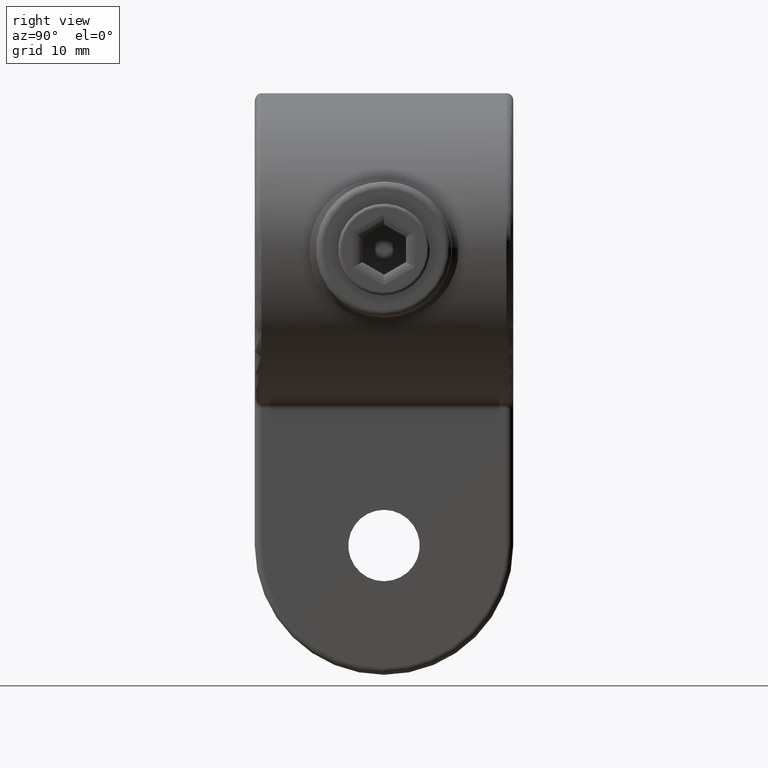
[diagram: clean part render]
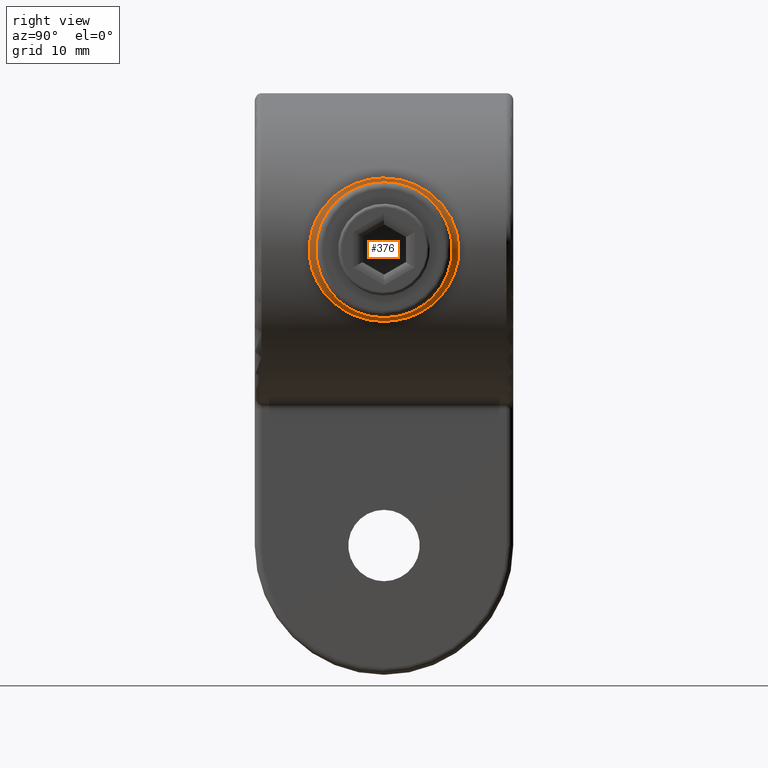
[diagram: same view with one face highlighted and labeled with its STEP entity id]
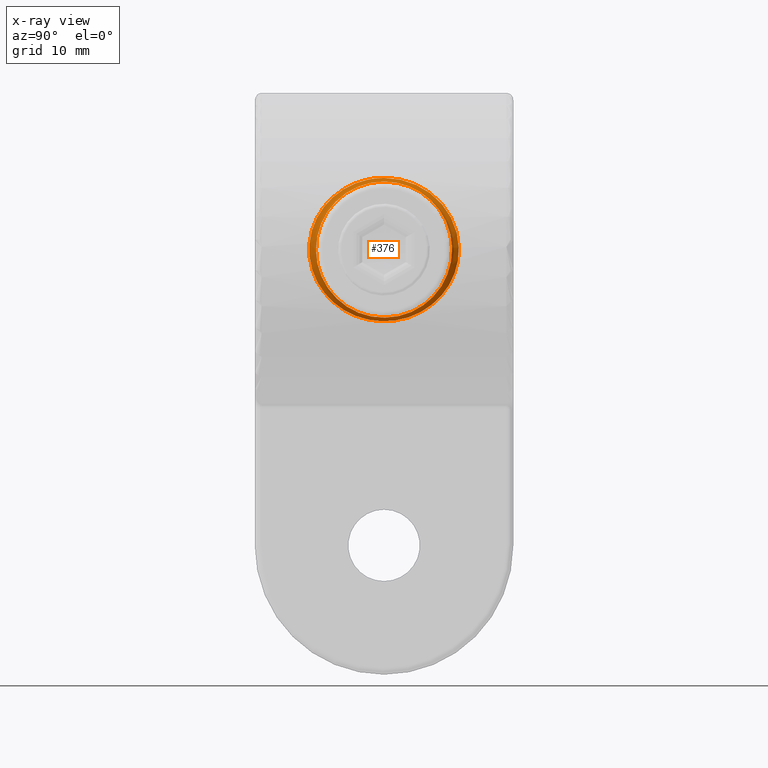
[diagram: x-ray of the same camera — body ghosted, the highlighted face saturated]
A machine part, right view. The second image highlights one B-rep face of the part: STEP entity #376.
The next image is the same camera in x-ray: the body ghosted, the highlighted face saturated — about 0% of this face is hidden behind the body in this view.
In plain terms, the highlighted face is a freeform B-spline surface patch.
Its self-contained STEP definition (entity closure, byte-faithful):
#14 = CARTESIAN_POINT ( 'NONE',  ( 22.95444421754035602, -10.89603891741068686, -1.487137774775452836 ) ) ;
#44 = CARTESIAN_POINT ( 'NONE',  ( 22.83763202501080869, -10.62608829478893924, -2.815230979567082681 ) ) ;
#60 = CARTESIAN_POINT ( 'NONE',  ( 22.43636857181628841, -8.616238030997871888, 5.088877089503887063 ) ) ;
#79 = CARTESIAN_POINT ( 'NONE',  ( 23.95860279499467538, 9.917664740685912861, -1.323009521991932891 ) ) ;
#89 = CARTESIAN_POINT ( 'NONE',  ( 22.13749066411191535, 8.868188474590359860, -6.246486309403673332 ) ) ;
#100 = CARTESIAN_POINT ( 'NONE',  ( 22.53280716251051530, -9.892170233597310514, 4.623290014590152097 ) ) ;
#111 = CARTESIAN_POINT ( 'NONE',  ( 22.78914816090380313, 7.295429630170321644, -6.846857674796038573 ) ) ;
#113 = CARTESIAN_POINT ( 'NONE',  ( 21.05349389920099057, -3.728081086482721851, 9.279745519699247325 ) ) ;
#123 = CARTESIAN_POINT ( 'NONE',  ( 20.57712126063454861, 2.481969359925620289, -10.27558488481000332 ) ) ;
#137 = CARTESIAN_POINT ( 'NONE',  ( 22.02327716047575734, -8.559332252495684301, 6.656506602779127313 ) ) ;
#149 = CARTESIAN_POINT ( 'NONE',  ( 23.93393751903562006, 9.868450870042478229, -1.650007543598122517 ) ) ;
#161 = CARTESIAN_POINT ( 'NONE',  ( 20.95023083360782223, -4.829221959350454618, -9.495717438055621074 ) ) ;
#184 = CARTESIAN_POINT ( 'NONE',  ( 20.65971352198414834, 3.140192752214129968, 10.10896414351862305 ) ) ;
#198 = CARTESIAN_POINT ( 'NONE',  ( 22.87012165116382789, 10.70128692629639922, -2.465490517900047251 ) ) ;
#308 = CARTESIAN_POINT ( 'NONE',  ( 22.73190400572224945, 10.37613488211276191, 3.516704510967718633 ) ) ;
#342 = CARTESIAN_POINT ( 'NONE',  ( 22.95087017526651252, 10.88863046905114196, -1.649515180385492830 ) ) ;
#353 = CARTESIAN_POINT ( 'NONE',  ( 20.76633251707429650, -3.828847513991735507, 9.888368054000574503 ) ) ;
#376 = ADVANCED_FACE ( 'NONE', ( #12388, #1699 ), #4723, .F. ) ;
#384 = CARTESIAN_POINT ( 'NONE',  ( 21.65446197002180639, 7.469099230414927071, 7.768683971771914720 ) ) ;
#419 = CARTESIAN_POINT ( 'NONE',  ( 22.13646035162962988, 7.808098942387660557, 6.284900407819713486 ) ) ;
#464 = CARTESIAN_POINT ( 'NONE',  ( 22.78112037378188504, 10.49270656963979675, 3.183527931269471090 ) ) ;
#509 = CARTESIAN_POINT ( 'NONE',  ( 20.49280788565205924, 1.548003549165864356, -10.44267681258868130 ) ) ;
#550 = CARTESIAN_POINT ( 'NONE',  ( 20.91712388697748892, 4.672106255303395628, -9.568190946465430002 ) ) ;
#593 = CARTESIAN_POINT ( 'NONE',  ( 21.64194505709251004, 3.337887369265650328, -9.432097364624260294 ) ) ;
#639 = CARTESIAN_POINT ( 'NONE',  ( 22.17068336163575637, 7.896396144013350771, -6.147283981260230235 ) ) ;
#674 = CARTESIAN_POINT ( 'NONE',  ( 22.10317767205145856, 8.774565207905590469, -6.366635717526842875 ) ) ;
#711 = CARTESIAN_POINT ( 'NONE',  ( 22.56468659163138923, -9.971195867480670216, -4.464734426269524548 ) ) ;
#724 = CARTESIAN_POINT ( 'NONE',  ( 23.74067803706651958, -9.477396286623511301, -3.257473174212294431 ) ) ;
#748 = CARTESIAN_POINT ( 'NONE',  ( 22.87243294249396897, -10.70704875447323801, -2.514788993227776714 ) ) ;
#764 = CARTESIAN_POINT ( 'NONE',  ( 21.62529326939843344, -3.248634952204432214, 9.463308858742307095 ) ) ;
#794 = CARTESIAN_POINT ( 'NONE',  ( 21.86609783728757606, -4.381523811700962057, -8.994941980564309603 ) ) ;
#808 = CARTESIAN_POINT ( 'NONE',  ( 21.34047246925563002, -0.6725744226693468608, 9.982874877423546067 ) ) ;
#836 = CARTESIAN_POINT ( 'NONE',  ( 21.25067442225897807, -6.065527754170118691, -8.800777560308514325 ) ) ;
#851 = CARTESIAN_POINT ( 'NONE',  ( 23.83546002647361917, -9.669995471335537829, -2.631652755925292908 ) ) ;
#879 = CARTESIAN_POINT ( 'NONE',  ( 22.27990386531096334, -8.202559237228658873, -5.757907904262205889 ) ) ;
#895 = CARTESIAN_POINT ( 'NONE',  ( 23.93286805322647837, -9.866308826920169750, -1.662694287201307075 ) ) ;
#926 = CARTESIAN_POINT ( 'NONE',  ( 21.16559862359094168, -4.362216327129351257, 9.025196971772132315 ) ) ;
#966 = CARTESIAN_POINT ( 'NONE',  ( 22.61222424290864907, -9.066295263962095063, 4.234447348684660994 ) ) ;
#991 = CARTESIAN_POINT ( 'NONE',  ( 21.89556021387143758, 8.188766093534598056, -7.046961247179513776 ) ) ;
#1002 = CARTESIAN_POINT ( 'NONE',  ( 21.05349389920099057, -3.728081086482721851, 9.279745519699247325 ) ) ;
#1014 = CARTESIAN_POINT ( 'NONE',  ( 21.47794111977171028, 2.304814206117101083, 9.736382601917274116 ) ) ;
#1028 = CARTESIAN_POINT ( 'NONE',  ( 20.45071325461659129, -0.7183515552171738650, -10.52472010823097115 ) ) ;
#1039 = CARTESIAN_POINT ( 'NONE',  ( 24.00259602987364005, -10.00515081908811688, -0.08005244733234656573 ) ) ;
#1050 = CARTESIAN_POINT ( 'NONE',  ( 22.35988655747572196, 6.117980842510322148, -7.936814975625152258 ) ) ;
#1051 = CARTESIAN_POINT ( 'NONE',  ( 21.57574874094932937, -3.009107723034849524, 9.559381881756742416 ) ) ;
#1065 = CARTESIAN_POINT ( 'NONE',  ( 21.56690080275603805, 7.178113706781733327, -7.995038121653374574 ) ) ;
#1086 = CARTESIAN_POINT ( 'NONE',  ( 21.50686867939944946, -5.770916757186250301, 8.175086973542828872 ) ) ;
#1102 = CARTESIAN_POINT ( 'NONE',  ( 22.87442035167775600, 7.512161140789097580, 6.608504107754270329 ) ) ;
#1116 = CARTESIAN_POINT ( 'NONE',  ( 21.09116911822201956, 5.448500998234659498, -9.182947532447663264 ) ) ;
#1143 = CARTESIAN_POINT ( 'NONE',  ( 21.66877950583928936, 3.479704198561412998, 9.380842050666627685 ) ) ;
#1152 = CARTESIAN_POINT ( 'NONE',  ( 22.74404016659558536, -10.40762552054759738, -3.484471919791947592 ) ) ;
#1163 = CARTESIAN_POINT ( 'NONE',  ( 21.70020643742953581, -3.624863568485114484, 9.319890777786472569 ) ) ;
#1189 = EDGE_LOOP ( 'NONE', ( #12340 ) ) ;
#1267 = CARTESIAN_POINT ( 'NONE',  ( 22.27935253446437613, 8.201073019964310262, 5.760114255596720412 ) ) ;
#1299 = CARTESIAN_POINT ( 'NONE',  ( 21.08110083266317858, 3.892438860855413463, 9.218057021342145774 ) ) ;
#1310 = CARTESIAN_POINT ( 'NONE',  ( 21.89428383690762203, -8.196237828544317594, 7.063608325339932215 ) ) ;
#1333 = CARTESIAN_POINT ( 'NONE',  ( 23.85897107084574387, 9.717422423442979351, 2.383474409539360739 ) ) ;
#1376 = CARTESIAN_POINT ( 'NONE',  ( 21.24911105120686372, 6.059651315685973039, 8.804583064833916950 ) ) ;
#1424 = CARTESIAN_POINT ( 'NONE',  ( 22.80592800431125866, 10.55136188015486454, -3.000297383649658034 ) ) ;
#1466 = CARTESIAN_POINT ( 'NONE',  ( 21.48928932054629826, 2.389738986155685474, -9.715903657519350034 ) ) ;
#1508 = CARTESIAN_POINT ( 'NONE',  ( 20.47031294639650767, 1.181588474075898620, -10.48652198866024143 ) ) ;
#1556 = CARTESIAN_POINT ( 'NONE',  ( 20.71865159368427811, 0.08325812848628959262, -10.00545049994141600 ) ) ;
#1591 = CARTESIAN_POINT ( 'NONE',  ( 21.86114371709661697, 8.088094149092540874, -7.152851984439176469 ) ) ;
#1638 = CARTESIAN_POINT ( 'NONE',  ( 22.24116333753853070, 8.092348161373713822, -5.886707705226291054 ) ) ;
#1681 = CARTESIAN_POINT ( 'NONE',  ( 23.60935960002579037, -9.200061621459491690, -3.932739388232019628 ) ) ;
#1699 = FACE_OUTER_BOUND ( 'NONE', #2123, .T. ) ;
#1724 = CARTESIAN_POINT ( 'NONE',  ( 21.02568923158177583, -5.142759152071219475, -9.324959509906316057 ) ) ;
#1737 = CARTESIAN_POINT ( 'NONE',  ( 23.95786875353757495, -9.916200678791719625, -1.334638731270334944 ) ) ;
#1767 = CARTESIAN_POINT ( 'NONE',  ( 20.50576290250264222, -1.725081744763177216, -10.41710403897752002 ) ) ;
#1779 = CARTESIAN_POINT ( 'NONE',  ( 23.04271054213591441, -7.930531595829428682, 6.125970318191524377 ) ) ;
#1808 = CARTESIAN_POINT ( 'NONE',  ( 20.95501042765242872, -4.819676192847179408, -9.482168004576235987 ) ) ;
#1861 = CARTESIAN_POINT ( 'NONE',  ( 22.36454061342797672, -9.467952105500039295, -5.377278870171702252 ) ) ;
#1875 = CARTESIAN_POINT ( 'NONE',  ( 21.33068616702833253, 0.3290663269095411847, -10.00007552254719378 ) ) ;
#1899 = EDGE_CURVE ( 'NONE', #9198, #9198, #1952, .T. ) ;
#1901 = CARTESIAN_POINT ( 'NONE',  ( 21.28572219339804050, -6.198391181830469776, 8.715335113732912475 ) ) ;
#1910 = CARTESIAN_POINT ( 'NONE',  ( 23.49956725034461869, 8.967010395316034277, 4.474313006455886921 ) ) ;
#1938 = CARTESIAN_POINT ( 'NONE',  ( 22.98081095069791502, -7.781211138393010707, 6.314472666657291455 ) ) ;
#1947 = CARTESIAN_POINT ( 'NONE',  ( 23.12375916325442660, 8.118021621006960231, -5.848334162577823570 ) ) ;
#1952 = B_SPLINE_CURVE_WITH_KNOTS ( 'NONE', 3,
 ( #2681, #9403, #808, #4706, #10472, #8456, #4629, #764, #4751, #3656, #11267, #11439, #7560, #5579, #8628, #9565, #1779, #9480, #10432, #5702, #2810, #11395, #11313, #7518, #5663, #6584, #12275, #6545, #7608, #1737, #895, #851, #724, #8547, #2764, #2856, #8506, #3825, #2720, #3739, #5542, #9440, #7480, #12364, #6626, #12411, #3784, #3702, #10388, #6676, #7653, #1875, #4585, #4668, #12241, #6498, #11353, #5627, #6839, #1993, #5818, #1050, #7736, #111, #8749, #10595, #1947, #10633, #2897, #6718, #3072, #7820, #3986, #149, #79, #10515, #8709, #11653, #9606, #2983, #3900, #7690, #5898, #1910, #4958, #6879, #6790, #1102, #9757, #2037, #2942, #11530, #10560, #4922, #9645, #3944, #1014, #11565, #11611, #7859 ),
 .UNSPECIFIED., .T., .F.,
 ( 4, 2, 2, 2, 2, 2, 2, 2, 2, 2, 2, 2, 2, 2, 2, 2, 2, 2, 2, 2, 2, 2, 2, 2, 2, 2, 2, 2, 2, 2, 2, 2, 2, 2, 2, 2, 2, 2, 2, 2, 2, 2, 2, 2, 2, 2, 2, 2, 2, 4 ),
 ( 0.000000000000000000, 0.001010329721427989528, 0.002020659442855979055, 0.003030989164283970101, 0.004041318885711960712, 0.006061978328567942803, 0.007072308049995935583, 0.008082637771423926629, 0.01010329721427991045, 0.01111362693570790323, 0.01212395665713589601, 0.01313428637856388879, 0.01414461609999188331, 0.01616527554284786367, 0.01717560526427585818, 0.01818593498570384923, 0.02020659442855983479, 0.02121692414998782930, 0.02222725387141582035, 0.02424791331427180244, 0.02626857275712778453, 0.02727890247855577210, 0.02828923219998376662, 0.03030989164283974177, 0.03132022136426772935, 0.03233055108569571345, 0.03334088080712370450, 0.03435121052855169554, 0.03536154024997967965, 0.03637186997140767070, 0.03839252941426364585, 0.04041318885711962100, 0.04142351857854760511, 0.04243384829997558227, 0.04445450774283155743, 0.04546483746425954847, 0.04647516718568753258, 0.04748549690711552362, 0.04849582662854351467, 0.05051648607139948288, 0.05152681579282747393, 0.05253714551425546497, 0.05455780495711143319, 0.05556813467853942423, 0.05657846439996741528, 0.05859912384282339043, 0.06061978328567935864, 0.06163011300710734969, 0.06264044272853533379, 0.06466110217139130201 ),
 .UNSPECIFIED. ) ;
#1961 = CARTESIAN_POINT ( 'NONE',  ( 22.83050513220556610, 10.60903482212048132, -2.807985669008748353 ) ) ;
#1979 = CARTESIAN_POINT ( 'NONE',  ( 23.97341455178681358, -9.947182889641897674, -1.079591282622305304 ) ) ;
#1993 = CARTESIAN_POINT ( 'NONE',  ( 21.88072315627285747, 4.470529857182998335, -8.968584865834673181 ) ) ;
#2009 = CARTESIAN_POINT ( 'NONE',  ( 22.96589279586578414, 10.92293604140102659, 1.432121529155833572 ) ) ;
#2022 = CARTESIAN_POINT ( 'NONE',  ( 23.44432694127755212, -8.844996633738094971, 4.676898353015332077 ) ) ;
#2037 = CARTESIAN_POINT ( 'NONE',  ( 22.53290412067507731, 6.615257170291311439, 7.526599925762079479 ) ) ;
#2040 = CARTESIAN_POINT ( 'NONE',  ( 20.73135816775376483, 0.9428376765038378737, 9.979100377554058099 ) ) ;
#2049 = CARTESIAN_POINT ( 'NONE',  ( 22.29110101240144104, -9.277666371880332719, -5.673829680516573326 ) ) ;
#2059 = CARTESIAN_POINT ( 'NONE',  ( 22.02777465781251820, -7.494847379181546643, 6.655854248720001642 ) ) ;
#2071 = CARTESIAN_POINT ( 'NONE',  ( 20.76591369329212000, 3.827674618501896386, 9.888970995414169352 ) ) ;
#2084 = CARTESIAN_POINT ( 'NONE',  ( 21.81674392581695088, -7.957154001261741882, -7.286562524704420341 ) ) ;
#2112 = CARTESIAN_POINT ( 'NONE',  ( 20.94301782590049399, -3.103158526712483489, 9.530596000732604267 ) ) ;
#2123 = EDGE_LOOP ( 'NONE', ( #4816 ) ) ;
#2158 = CARTESIAN_POINT ( 'NONE',  ( 20.43913470880455918, -0.09181940438187541353, 10.54712608931781048 ) ) ;
#2228 = CARTESIAN_POINT ( 'NONE',  ( 22.89957032063638209, 10.76958259274978325, 2.174154411246786989 ) ) ;
#2276 = CARTESIAN_POINT ( 'NONE',  ( 22.99091535622798688, 10.97931288886440093, -0.9578087373319026376 ) ) ;
#2286 = CARTESIAN_POINT ( 'NONE',  ( 20.44194863238065452, -9.757819552369539906E-16, 10.54166666666666430 ) ) ;
#2319 = CARTESIAN_POINT ( 'NONE',  ( 21.86535036356335482, 4.378364405932753556, 8.996432830326961394 ) ) ;
#2354 = CARTESIAN_POINT ( 'NONE',  ( 24.00662044333909506, 10.01313471766400376, 0.4323184642230332164 ) ) ;
#2403 = CARTESIAN_POINT ( 'NONE',  ( 22.84127297672978330, 9.626663843569357226, -2.728679554647849503 ) ) ;
#2455 = CARTESIAN_POINT ( 'NONE',  ( 22.56352078916324544, 8.945525218900019837, -4.517414505343495534 ) ) ;
#2497 = CARTESIAN_POINT ( 'NONE',  ( 20.74803412901936639, 1.107988818660658348, -9.944392050238942460 ) ) ;
#2541 = CARTESIAN_POINT ( 'NONE',  ( 21.00160324314571980, 3.435845194257630908, -9.397674524974256371 ) ) ;
#2584 = CARTESIAN_POINT ( 'NONE',  ( 21.29829318388499715, 4.956289874924071803, -8.711262904904433668 ) ) ;
#2626 = CARTESIAN_POINT ( 'NONE',  ( 20.95160593096521495, 3.117311306528906201, -9.508297586588627226 ) ) ;
#2668 = CARTESIAN_POINT ( 'NONE',  ( 20.81084755694617883, -1.957850801066461921, -9.812536824772159605 ) ) ;
#2681 = CARTESIAN_POINT ( 'NONE',  ( 21.33072900770154590, 2.710505431213761085E-17, 10.00000000000000355 ) ) ;
#2706 = CARTESIAN_POINT ( 'NONE',  ( 22.68345463098033576, -7.017828359308894370, -7.131311020990843019 ) ) ;
#2720 = CARTESIAN_POINT ( 'NONE',  ( 22.87694981237921610, -7.528418445030633066, -6.613854840199138607 ) ) ;
#2749 = CARTESIAN_POINT ( 'NONE',  ( 22.17461678872977160, -5.514116140192352411, -8.348563693730923774 ) ) ;
#2764 = CARTESIAN_POINT ( 'NONE',  ( 23.49421026149225256, -8.953596094076658574, -4.465322302377486174 ) ) ;
#2779 = CARTESIAN_POINT ( 'NONE',  ( 22.68225800148542248, 10.25728659645097984, 3.823812273383865090 ) ) ;
#2796 = CARTESIAN_POINT ( 'NONE',  ( 21.40378160015740505, -5.373749540368192079, -8.441465453944696051 ) ) ;
#2810 = CARTESIAN_POINT ( 'NONE',  ( 23.56029847467554816, -9.095608350963420463, 4.168524702506409163 ) ) ;
#2840 = CARTESIAN_POINT ( 'NONE',  ( 23.33691194415549575, -8.607229186905628993, -5.100976003313373752 ) ) ;
#2856 = CARTESIAN_POINT ( 'NONE',  ( 23.35358437367835194, -8.644202936669911352, -5.038228048594258546 ) ) ;
#2870 = CARTESIAN_POINT ( 'NONE',  ( 21.81463634477258751, 7.950793754870181473, 7.292780359523341360 ) ) ;
#2881 = CARTESIAN_POINT ( 'NONE',  ( 21.82466413390974580, -4.240619413935377224, 9.080399673816204498 ) ) ;
#2897 = CARTESIAN_POINT ( 'NONE',  ( 23.50067973232901863, 8.969432398114365768, -4.469848945418144481 ) ) ;
#2927 = CARTESIAN_POINT ( 'NONE',  ( 22.55093558068747228, -6.655875974393543615, 7.470215030244809817 ) ) ;
#2942 = CARTESIAN_POINT ( 'NONE',  ( 22.36071376981085379, 6.120474144525047677, 7.934899374673187289 ) ) ;
#2958 = CARTESIAN_POINT ( 'NONE',  ( 21.40336157759161040, -6.642767665955212841, -8.429616008849421860 ) ) ;
#2968 = CARTESIAN_POINT ( 'NONE',  ( 23.00248786201749951, -11.00566590090138064, -0.08438862156450625818 ) ) ;
#2983 = CARTESIAN_POINT ( 'NONE',  ( 23.86832751765477667, 9.736239287255726182, 2.305257450750750614 ) ) ;
#2993 = CARTESIAN_POINT ( 'NONE',  ( 22.05737277419210685, 8.648694578393486765, -6.522846479785381568 ) ) ;
#3010 = CARTESIAN_POINT ( 'NONE',  ( 22.32743058269899450, -9.371884376372122460, 5.529979362892123440 ) ) ;
#3028 = CARTESIAN_POINT ( 'NONE',  ( 21.38876992254442300, 1.567909046948243956, 9.898357765410375819 ) ) ;
#3039 = CARTESIAN_POINT ( 'NONE',  ( 21.56779829626731626, -7.192276793543716629, -8.005455168565795532 ) ) ;
#3055 = CARTESIAN_POINT ( 'NONE',  ( 22.99858758885485344, -10.99681112546447892, -0.4345621196190645463 ) ) ;
#3072 = CARTESIAN_POINT ( 'NONE',  ( 23.73494703822354523, 9.463146344910340346, -3.249358508971833981 ) ) ;
#3074 = CARTESIAN_POINT ( 'NONE',  ( 21.02558185020755133, 3.580890062029430609, 9.343657866142349278 ) ) ;
#3088 = CARTESIAN_POINT ( 'NONE',  ( 22.50153143174634351, -9.814734853759448541, -4.772660812141221065 ) ) ;
#3123 = CARTESIAN_POINT ( 'NONE',  ( 22.93386408307796742, -10.84880670394190538, -1.777250323796543796 ) ) ;
#3148 = CARTESIAN_POINT ( 'NONE',  ( 21.70020643742953581, -3.624863568485114484, 9.319890777786472569 ) ) ;
#3235 = CARTESIAN_POINT ( 'NONE',  ( 22.76054956626549242, 9.432136468782637451, -3.340189202319507000 ) ) ;
#3246 = CARTESIAN_POINT ( 'NONE',  ( 21.08996365979181675, -5.442898684665716580, 9.185516182531520357 ) ) ;
#3271 = CARTESIAN_POINT ( 'NONE',  ( 21.69329494044080420, 6.447785951384052083, 7.674829760900727216 ) ) ;
#3309 = CARTESIAN_POINT ( 'NONE',  ( 21.47334990128831578, 5.643873643300039156, 8.263180843802798492 ) ) ;
#3347 = CARTESIAN_POINT ( 'NONE',  ( 23.89520381292947349, 9.790529629775299725, 2.062438967197770534 ) ) ;
#3398 = CARTESIAN_POINT ( 'NONE',  ( 22.87555150768037038, 9.708113026558731207, -2.421553323798362634 ) ) ;
#3434 = CARTESIAN_POINT ( 'NONE',  ( 21.28899099266470429, 6.210703529748278662, -8.707391992758804378 ) ) ;
#3472 = CARTESIAN_POINT ( 'NONE',  ( 20.72282556818334598, 0.4248362583751844057, -9.996837226710592716 ) ) ;
#3519 = CARTESIAN_POINT ( 'NONE',  ( 22.02717791855888052, 7.482365237400828484, -6.644803287930780122 ) ) ;
#3557 = CARTESIAN_POINT ( 'NONE',  ( 21.73164131160929102, 6.560172587093169305, -7.556759724941855438 ) ) ;
#3597 = CARTESIAN_POINT ( 'NONE',  ( 22.55438240989059295, 6.665460404570450414, -7.461563553893254763 ) ) ;
#3642 = CARTESIAN_POINT ( 'NONE',  ( 22.63934070927287578, -9.134320238867507769, -4.085950161795848246 ) ) ;
#3656 = CARTESIAN_POINT ( 'NONE',  ( 21.88019858547496810, -4.469405341765561701, 8.969730098834030940 ) ) ;
#3685 = CARTESIAN_POINT ( 'NONE',  ( 21.42983954954830139, -1.898760818842960996, -9.823658015656864251 ) ) ;
#3702 = CARTESIAN_POINT ( 'NONE',  ( 21.40546412676233246, -1.656829164717649183, -9.867415391290261795 ) ) ;
#3727 = CARTESIAN_POINT ( 'NONE',  ( 21.20173915430840594, -4.501460476680263056, -8.936849365394929023 ) ) ;
#3739 = CARTESIAN_POINT ( 'NONE',  ( 22.53149909501962966, -6.611590794795052517, -7.530406847766213829 ) ) ;
#3755 = CARTESIAN_POINT ( 'NONE',  ( 20.44194863238065452, 0.7214183516898989845, 10.54166666666666607 ) ) ;
#3768 = CARTESIAN_POINT ( 'NONE',  ( 21.66331509020411517, -3.486858032715099309, -9.395145003914157300 ) ) ;
#3780 = CARTESIAN_POINT ( 'NONE',  ( 20.44194863238064741, 0.000000000000000000, 10.54166666666666607 ) ) ;
#3784 = CARTESIAN_POINT ( 'NONE',  ( 21.51509276133982951, -2.636338517898075384, -9.669208693599001592 ) ) ;
#3813 = CARTESIAN_POINT ( 'NONE',  ( 22.43415509955925558, -9.645160201224701524, -5.080120022655480128 ) ) ;
#3825 = CARTESIAN_POINT ( 'NONE',  ( 23.04582273854459018, -7.937878535470661134, -6.115921084326220836 ) ) ;
#3852 = CARTESIAN_POINT ( 'NONE',  ( 22.97934279267588664, -9.952002492820543722, -1.030395114558340763 ) ) ;
#3889 = CARTESIAN_POINT ( 'NONE',  ( 23.22063344937130935, -8.343550088458812297, 5.521786384942130255 ) ) ;
#3900 = CARTESIAN_POINT ( 'NONE',  ( 23.82822264545082191, 9.654933970056049475, 2.625334452193215373 ) ) ;
#3913 = CARTESIAN_POINT ( 'NONE',  ( 20.71501168917960456, 3.514385744236766307, -9.995014577957398672 ) ) ;
#3929 = CARTESIAN_POINT ( 'NONE',  ( 23.94873772009703927, -9.898790989864448164, 1.567835107207200540 ) ) ;
#3944 = CARTESIAN_POINT ( 'NONE',  ( 21.52284678530990902, 2.627168456665569085, 9.654412735408444135 ) ) ;
#3956 = CARTESIAN_POINT ( 'NONE',  ( 22.96643577962701954, -10.92419911441441904, 1.427154330680189265 ) ) ;
#3970 = CARTESIAN_POINT ( 'NONE',  ( 21.36514123392684894, -6.488190003387087401, 8.519470715844887465 ) ) ;
#3986 = CARTESIAN_POINT ( 'NONE',  ( 23.86931331814194124, 9.738235259782852538, -2.296872110826992497 ) ) ;
#3987 = CARTESIAN_POINT ( 'NONE',  ( 21.55796193618812495, 2.854720683907701950, 9.589531203656971314 ) ) ;
#3999 = CARTESIAN_POINT ( 'NONE',  ( 22.95875285506628671, 10.90582557486977144, -1.421884153053921684 ) ) ;
#4012 = CARTESIAN_POINT ( 'NONE',  ( 21.05642842917743707, -5.300769648089877606, 9.261909282845657287 ) ) ;
#4041 = CARTESIAN_POINT ( 'NONE',  ( 20.48492088993701188, -1.428549434803358276, -10.45798365423154053 ) ) ;
#4069 = CARTESIAN_POINT ( 'NONE',  ( 20.71862679375304239, -0.08599643134850565307, 10.00550191307446468 ) ) ;
#4080 = CARTESIAN_POINT ( 'NONE',  ( 21.81348651855180165, 7.947360118271398655, -7.296213757157264723 ) ) ;
#4111 = CARTESIAN_POINT ( 'NONE',  ( 20.47080612097967034, -1.190786063023908881, 10.48556012605868482 ) ) ;
#4150 = CARTESIAN_POINT ( 'NONE',  ( 20.76952740764422956, -1.453923563455096879, 9.899586900577363124 ) ) ;
#4160 = CARTESIAN_POINT ( 'NONE',  ( 21.56280137869504188, -7.164742079988287493, 8.006099116654869619 ) ) ;
#4190 = CARTESIAN_POINT ( 'NONE',  ( 22.77981670539326231, 9.478994666267780644, 3.204722352398764684 ) ) ;
#4227 = CARTESIAN_POINT ( 'NONE',  ( 22.17298544500112456, 5.508773923464817202, 8.352173658598307071 ) ) ;
#4242 = CARTESIAN_POINT ( 'NONE',  ( 20.71145597642996350, -3.491326165029325246, 10.00236578381193198 ) ) ;
#4285 = CARTESIAN_POINT ( 'NONE',  ( 22.88983881074921811, 9.742090335529596246, 2.281397350373755017 ) ) ;
#4323 = CARTESIAN_POINT ( 'NONE',  ( 23.99052037146296001, 9.981193535885575230, -0.9085932686259301505 ) ) ;
#4369 = CARTESIAN_POINT ( 'NONE',  ( 22.82063814358280496, 9.577121343592683189, 2.897527296559310628 ) ) ;
#4414 = CARTESIAN_POINT ( 'NONE',  ( 21.95387285645169229, 7.263731884709361708, -6.883288316703572107 ) ) ;
#4453 = CARTESIAN_POINT ( 'NONE',  ( 21.97313169584530357, 4.823854480979087533, -8.783666457261888993 ) ) ;
#4484 = CARTESIAN_POINT ( 'NONE',  ( 22.71461029359060291, 9.320280169346439436, -3.641171893546884419 ) ) ;
#4528 = CARTESIAN_POINT ( 'NONE',  ( 21.82656405552387469, 4.247369322890727439, -9.076544770868876455 ) ) ;
#4573 = CARTESIAN_POINT ( 'NONE',  ( 20.86443934269479072, 2.462939944932724945, -9.698184596015844150 ) ) ;
#4585 = CARTESIAN_POINT ( 'NONE',  ( 21.33999138890385439, 0.6609308806603442221, -9.983724338566018375 ) ) ;
#4616 = CARTESIAN_POINT ( 'NONE',  ( 21.33716848051648896, -0.5797888566749697103, -9.988644184489913869 ) ) ;
#4629 = CARTESIAN_POINT ( 'NONE',  ( 21.52194656194560096, -2.620763560034322648, 9.656057268421262663 ) ) ;
#4653 = CARTESIAN_POINT ( 'NONE',  ( 22.33995826654125594, -6.040547057525343710, -7.975950338463364098 ) ) ;
#4668 = CARTESIAN_POINT ( 'NONE',  ( 21.37739994154068413, 1.325702568512879820, -9.917363258312379415 ) ) ;
#4679 = CARTESIAN_POINT ( 'NONE',  ( 22.13893590373858800, 8.872096353053883888, 6.241306949815191629 ) ) ;
#4695 = CARTESIAN_POINT ( 'NONE',  ( 21.26734875270822300, -4.800213549596696438, -8.779932846766170584 ) ) ;
#4706 = CARTESIAN_POINT ( 'NONE',  ( 21.37798963000324548, -1.332997181475613857, 9.916313109543345661 ) ) ;
#4720 = CARTESIAN_POINT ( 'NONE',  ( 22.73591418797713359, 10.38549995068284915, 3.492233079625015169 ) ) ;
#4723 =( BOUNDED_SURFACE ( )  B_SPLINE_SURFACE ( 3, 2, ( 
 ( #8790, #113, #3148 ),
 ( #8940, #2112, #1051 ),
 ( #7985, #11656, #6967 ),
 ( #7823, #4150, #6880 ),
 ( #4111, #8835, #11777 ),
 ( #6921, #9856, #5001 ),
 ( #2158, #4069, #6022 ),
 ( #10832, #2040, #5948 ),
 ( #7862, #10791, #3028 ),
 ( #5901, #9759, #9722 ),
 ( #184, #7945, #3987 ),
 ( #2071, #3074, #1143 ),
 ( #7910, #1299, #6185 ),
 ( #6070, #5210, #2319 ),
 ( #8069, #10874, #10909 ),
 ( #6232, #10093, #9058 ),
 ( #1376, #3309, #4227 ),
 ( #8026, #3271, #9105 ),
 ( #384, #9978, #8192 ),
 ( #11901, #419, #7175 ),
 ( #7049, #1267, #9931 ),
 ( #11990, #6143, #5282 ),
 ( #7136, #7088, #5242 ),
 ( #308, #4190, #5168 ),
 ( #464, #4369, #10008 ),
 ( #8141, #4285, #1333 ),
 ( #2228, #8101, #3347 ),
 ( #10947, #10049, #9144 ),
 ( #11858, #6100, #2354 ),
 ( #2276, #11952, #4323 ),
 ( #342, #11000, #9012 ),
 ( #7209, #3398, #11043 ),
 ( #1424, #2403, #5326 ),
 ( #8974, #3235, #10138 ),
 ( #10216, #4484, #12181 ),
 ( #11120, #2455, #8315 ),
 ( #9305, #11167, #9346 ),
 ( #674, #1638, #7385 ),
 ( #5445, #639, #8358 ),
 ( #1591, #3519, #12108 ),
 ( #12145, #4414, #8231 ),
 ( #7344, #11251, #3597 ),
 ( #5493, #3557, #8274 ),
 ( #10257, #6408, #9183 ),
 ( #3434, #6445, #7427 ),
 ( #11085, #2584, #4453 ),
 ( #550, #12069, #4528 ),
 ( #11207, #2541, #593 ),
 ( #8398, #2626, #5365 ),
 ( #10297, #4573, #1466 ),
 ( #12022, #6274, #6362 ),
 ( #509, #6314, #7305 ),
 ( #1508, #2497, #7256 ),
 ( #9228, #3472, #10171 ),
 ( #5405, #1556, #9269 ),
 ( #9468, #9553, #4616 ),
 ( #9428, #10420, #6483 ),
 ( #1767, #10460, #7547 ),
 ( #5651, #2668, #3685 ),
 ( #9387, #7594, #12262 ),
 ( #12348, #7505, #3768 ),
 ( #1808, #3727, #794 ),
 ( #1724, #4695, #12305 ),
 ( #6615, #2796, #10372 ),
 ( #836, #8533, #2749 ),
 ( #11379, #5531, #4653 ),
 ( #10334, #8574, #11338 ),
 ( #5689, #5565, #9514 ),
 ( #8490, #4737, #2706 ),
 ( #11426, #5611, #12398 ),
 ( #6658, #879, #7637 ),
 ( #1861, #8612, #2840 ),
 ( #3813, #10500, #4775 ),
 ( #711, #3642, #12227 ),
 ( #6569, #7465, #1681 ),
 ( #8442, #11297, #6532 ),
 ( #748, #10661, #10618 ),
 ( #14, #4908, #7766 ),
 ( #9595, #3852, #1979 ),
 ( #3055, #8734, #11596 ),
 ( #2968, #9631, #1039 ),
 ( #6747, #5845, #9679 ),
 ( #10546, #4815, #3929 ),
 ( #4945, #8661, #11518 ),
 ( #11641, #5768, #5726 ),
 ( #100, #966, #9742 ),
 ( #6824, #7806, #2022 ),
 ( #3010, #60, #8776 ),
 ( #7723, #12441, #3889 ),
 ( #137, #9711, #1938 ),
 ( #10582, #2059, #8819 ),
 ( #8698, #10698, #2927 ),
 ( #4861, #11550, #7678 ),
 ( #3970, #5887, #6866 ),
 ( #1901, #1086, #7844 ),
 ( #4012, #11479, #5804 ),
 ( #6705, #926, #2881 ),
 ( #6777, #1002, #1163 ) ),
 .UNSPECIFIED., .T., .F., .F. ) 
 B_SPLINE_SURFACE_WITH_KNOTS ( ( 4, 2, 2, 2, 2, 2, 2, 2, 2, 2, 2, 2, 2, 2, 2, 2, 2, 2, 2, 2, 2, 2, 2, 2, 2, 2, 2, 2, 2, 2, 2, 2, 2, 2, 2, 2, 2, 2, 2, 2, 2, 2, 2, 2, 2, 2, 2, 2, 4 ),
 ( 3, 3 ),
 ( 0.000000000000000000, 0.002172716279580329257, 0.003259074419370493886, 0.004345432559160658514, 0.006518148838740987772, 0.007604506978531152400, 0.008690865118321317029, 0.009777223258111481657, 0.01086358139790164629, 0.01303629767748197554, 0.01520901395706230480, 0.01738173023664263406, 0.01846808837643279869, 0.01955444651622296331, 0.02172716279580329257, 0.02389987907538362183, 0.02498623721517378646, 0.02607259535496395109, 0.02824531163454428034, 0.02933166977433444497, 0.03041802791412460960, 0.03150438605391477076, 0.03259074419370493886, 0.03476346047328526812, 0.03584981861307542927, 0.03693617675286559737, 0.03802253489265576547, 0.03910889303244592663, 0.04019525117223608779, 0.04128160931202625589, 0.04345432559160658514, 0.04454068373139674630, 0.04562704187118691440, 0.04671340001097708250, 0.04779975815076724366, 0.04997247443034757292, 0.05105883257013774101, 0.05214519070992790217, 0.05431790698950823143, 0.05540426512929839953, 0.05649062326908856069, 0.05866333954866888994, 0.06083605582824921920, 0.06192241396803938036, 0.06300877210782954152, 0.06518148838740987772, 0.06626784652720005275, 0.06735420466699021391, 0.06952692094657053623 ),
 ( 0.000000000000000000, 1.000000000000000000 ),
 .UNSPECIFIED. ) 
 GEOMETRIC_REPRESENTATION_ITEM ( )  RATIONAL_B_SPLINE_SURFACE ( (
 ( 1.000000000000000000, 0.8360950909347079074, 1.000000000000000000),
 ( 1.000000000000000000, 0.8422129016123034440, 1.000000000000000000),
 ( 1.000000000000000000, 0.8468558411802328267, 1.000000000000000000),
 ( 1.000000000000000000, 0.8513842544195768802, 1.000000000000000000),
 ( 1.000000000000000000, 0.8524862248998873460, 1.000000000000000000),
 ( 1.000000000000000000, 0.8538227901612905901, 1.000000000000000000),
 ( 1.000000000000000000, 0.8540515128640416842, 1.000000000000000000),
 ( 1.000000000000000000, 0.8533851652617560068, 1.000000000000000000),
 ( 1.000000000000000000, 0.8511743150629564880, 1.000000000000000000),
 ( 1.000000000000000000, 0.8453974648579392071, 1.000000000000000000),
 ( 1.000000000000000000, 0.8430432715747102623, 1.000000000000000000),
 ( 1.000000000000000000, 0.8376451833133882197, 1.000000000000000000),
 ( 1.000000000000000000, 0.8346029568763878581, 1.000000000000000000),
 ( 1.000000000000000000, 0.8279182557978354007, 1.000000000000000000),
 ( 1.000000000000000000, 0.8242755287062497604, 1.000000000000000000),
 ( 1.000000000000000000, 0.8164687941313455433, 1.000000000000000000),
 ( 1.000000000000000000, 0.8122821261200192655, 1.000000000000000000),
 ( 1.000000000000000000, 0.7992591790470076063, 1.000000000000000000),
 ( 1.000000000000000000, 0.7899689751354449507, 1.000000000000000000),
 ( 1.000000000000000000, 0.7710778901180691536, 1.000000000000000000),
 ( 1.000000000000000000, 0.7613972127209462926, 1.000000000000000000),
 ( 1.000000000000000000, 0.7435377052068097292, 1.000000000000000000),
 ( 1.000000000000000000, 0.7352783599833211392, 1.000000000000000000),
 ( 1.000000000000000000, 0.7247773374451089712, 1.000000000000000000),
 ( 1.000000000000000000, 0.7215785577126790917, 1.000000000000000000),
 ( 1.000000000000000000, 0.7160965508311317729, 1.000000000000000000),
 ( 1.000000000000000000, 0.7138003542495038323, 1.000000000000000000),
 ( 1.000000000000000000, 0.7083640582129988594, 1.000000000000000000),
 ( 1.000000000000000000, 0.7066812923218653841, 1.000000000000000000),
 ( 1.000000000000000000, 0.7077160480218350758, 1.000000000000000000),
 ( 1.000000000000000000, 0.7104125509509874314, 1.000000000000000000),
 ( 1.000000000000000000, 0.7172297278383351626, 1.000000000000000000),
 ( 1.000000000000000000, 0.7199632516460359177, 1.000000000000000000),
 ( 1.000000000000000000, 0.7262595262939868235, 1.000000000000000000),
 ( 1.000000000000000000, 0.7297953029267068015, 1.000000000000000000),
 ( 1.000000000000000000, 0.7412094674451438214, 1.000000000000000000),
 ( 1.000000000000000000, 0.7499341755232400430, 1.000000000000000000),
 ( 1.000000000000000000, 0.7638384150943207107, 1.000000000000000000),
 ( 1.000000000000000000, 0.7685992132594079429, 1.000000000000000000),
 ( 1.000000000000000000, 0.7780713757174577694, 1.000000000000000000),
 ( 1.000000000000000000, 0.7828053900994986769, 1.000000000000000000),
 ( 1.000000000000000000, 0.7921474374358322690, 1.000000000000000000),
 ( 1.000000000000000000, 0.7967557687582742521, 1.000000000000000000),
 ( 1.000000000000000000, 0.8057331973148894599, 1.000000000000000000),
 ( 1.000000000000000000, 0.8101242924180341864, 1.000000000000000000),
 ( 1.000000000000000000, 0.8225556796728290543, 1.000000000000000000),
 ( 1.000000000000000000, 0.8298817798896266362, 1.000000000000000000),
 ( 1.000000000000000000, 0.8389599850321939334, 1.000000000000000000),
 ( 1.000000000000000000, 0.8416674472989661426, 1.000000000000000000),
 ( 1.000000000000000000, 0.8463554864836034808, 1.000000000000000000),
 ( 1.000000000000000000, 0.8483238085061906020, 1.000000000000000000),
 ( 1.000000000000000000, 0.8513974714275212019, 1.000000000000000000),
 ( 1.000000000000000000, 0.8525106358799416917, 1.000000000000000000),
 ( 1.000000000000000000, 0.8538327459392178742, 1.000000000000000000),
 ( 1.000000000000000000, 0.8540502142516117612, 1.000000000000000000),
 ( 1.000000000000000000, 0.8536078610886574936, 1.000000000000000000),
 ( 1.000000000000000000, 0.8529480251975848359, 1.000000000000000000),
 ( 1.000000000000000000, 0.8507527417031329753, 1.000000000000000000),
 ( 1.000000000000000000, 0.8492037206696452234, 1.000000000000000000),
 ( 1.000000000000000000, 0.8433865709631164220, 1.000000000000000000),
 ( 1.000000000000000000, 0.8379525678318382464, 1.000000000000000000),
 ( 1.000000000000000000, 0.8278809721311459757, 1.000000000000000000),
 ( 1.000000000000000000, 0.8241812521260803992, 1.000000000000000000),
 ( 1.000000000000000000, 0.8163403579268452281, 1.000000000000000000),
 ( 1.000000000000000000, 0.8121975303641103539, 1.000000000000000000),
 ( 1.000000000000000000, 0.8035703045379999354, 1.000000000000000000),
 ( 1.000000000000000000, 0.7990856063112787844, 1.000000000000000000),
 ( 1.000000000000000000, 0.7898777551289262178, 1.000000000000000000),
 ( 1.000000000000000000, 0.7851369058207648965, 1.000000000000000000),
 ( 1.000000000000000000, 0.7708456190752384085, 1.000000000000000000),
 ( 1.000000000000000000, 0.7613587730315999336, 1.000000000000000000),
 ( 1.000000000000000000, 0.7479831919616467539, 1.000000000000000000),
 ( 1.000000000000000000, 0.7436681094121697644, 1.000000000000000000),
 ( 1.000000000000000000, 0.7354789719257941449, 1.000000000000000000),
 ( 1.000000000000000000, 0.7316023567066148869, 1.000000000000000000),
 ( 1.000000000000000000, 0.7211345844766093860, 1.000000000000000000),
 ( 1.000000000000000000, 0.7156025509256648265, 1.000000000000000000),
 ( 1.000000000000000000, 0.7101563589798858267, 1.000000000000000000),
 ( 1.000000000000000000, 0.7088134224996394117, 1.000000000000000000),
 ( 1.000000000000000000, 0.7072021826525127786, 1.000000000000000000),
 ( 1.000000000000000000, 0.7069399477966669121, 1.000000000000000000),
 ( 1.000000000000000000, 0.7077459107844260577, 1.000000000000000000),
 ( 1.000000000000000000, 0.7104130274240129106, 1.000000000000000000),
 ( 1.000000000000000000, 0.7196511155035020257, 1.000000000000000000),
 ( 1.000000000000000000, 0.7260780831336806074, 1.000000000000000000),
 ( 1.000000000000000000, 0.7374892803494496052, 1.000000000000000000),
 ( 1.000000000000000000, 0.7415927781854213530, 1.000000000000000000),
 ( 1.000000000000000000, 0.7502647026452707868, 1.000000000000000000),
 ( 1.000000000000000000, 0.7548075848476434313, 1.000000000000000000),
 ( 1.000000000000000000, 0.7686480190786496580, 1.000000000000000000),
 ( 1.000000000000000000, 0.7782230662853636405, 1.000000000000000000),
 ( 1.000000000000000000, 0.7923335926971566412, 1.000000000000000000),
 ( 1.000000000000000000, 0.7970095446053691024, 1.000000000000000000),
 ( 1.000000000000000000, 0.8059822432484530230, 1.000000000000000000),
 ( 1.000000000000000000, 0.8103010664550961417, 1.000000000000000000),
 ( 1.000000000000000000, 0.8226153855289470851, 1.000000000000000000),
 ( 1.000000000000000000, 0.8299772802571123709, 1.000000000000000000),
 ( 1.000000000000000000, 0.8360950909347079074, 1.000000000000000000) ) ) 
 REPRESENTATION_ITEM ( '' )  SURFACE ( )  );
#4737 = CARTESIAN_POINT ( 'NONE',  ( 21.91740937314867921, -7.152016652356383730, -6.999193221097851136 ) ) ;
#4749 = CARTESIAN_POINT ( 'NONE',  ( 21.33072900770154234, 0.000000000000000000, 10.00000000000000000 ) ) ;
#4751 = CARTESIAN_POINT ( 'NONE',  ( 21.68483178437314152, -3.560431208745738374, 9.350467375833275696 ) ) ;
#4775 = CARTESIAN_POINT ( 'NONE',  ( 23.40955314769295015, -8.768327455436143225, -4.819086187449209469 ) ) ;
#4815 = CARTESIAN_POINT ( 'NONE',  ( 22.96067560875218660, -9.909175293647054517, 1.492858173805835742 ) ) ;
#4816 = ORIENTED_EDGE ( 'NONE', *, *, #1899, .F. ) ;
#4861 = CARTESIAN_POINT ( 'NONE',  ( 21.52774709663636443, -7.049178619157398629, 8.099799143623526376 ) ) ;
#4890 = CARTESIAN_POINT ( 'NONE',  ( 22.73497126396549817, -10.38324766971110336, 3.498112807062804031 ) ) ;
#4908 = CARTESIAN_POINT ( 'NONE',  ( 22.96307962222228127, -9.914160824027776542, -1.346796622059498016 ) ) ;
#4922 = CARTESIAN_POINT ( 'NONE',  ( 21.68646518039798465, 3.568436180655163437, 9.347321964305596254 ) ) ;
#4934 = CARTESIAN_POINT ( 'NONE',  ( 22.56403829837452690, -9.969339661347310866, 4.468855564632132626 ) ) ;
#4945 = CARTESIAN_POINT ( 'NONE',  ( 22.81088202483313410, -10.56350781593172705, 3.022892070870676573 ) ) ;
#4958 = CARTESIAN_POINT ( 'NONE',  ( 23.35820528868523738, 8.659716013642345445, 5.042525649526569786 ) ) ;
#4971 = CARTESIAN_POINT ( 'NONE',  ( 20.51003817713023381, 1.777367166112261421, -10.40883749860924290 ) ) ;
#5001 = CARTESIAN_POINT ( 'NONE',  ( 21.33263655028931538, -0.4203679434550086635, 9.996675890064182113 ) ) ;
#5012 = CARTESIAN_POINT ( 'NONE',  ( 20.94961640555166582, 4.825932149477718092, -9.497033732411997775 ) ) ;
#5053 = CARTESIAN_POINT ( 'NONE',  ( 20.70912242373310974, -3.519168777924806868, -10.01064783536413216 ) ) ;
#5168 = CARTESIAN_POINT ( 'NONE',  ( 23.72024765785373290, 9.432849893049558787, 3.336004279220091906 ) ) ;
#5210 = CARTESIAN_POINT ( 'NONE',  ( 21.20107167084000821, 4.498232473545758836, 8.938422589634477333 ) ) ;
#5219 = CARTESIAN_POINT ( 'NONE',  ( 20.61633918661012643, -2.812318795790194947, 10.19697447674611546 ) ) ;
#5242 = CARTESIAN_POINT ( 'NONE',  ( 23.54960564164396430, 9.074532084288623679, 4.252433900054850113 ) ) ;
#5282 = CARTESIAN_POINT ( 'NONE',  ( 23.41284807261046197, 8.780353662619782895, 4.829478683120865590 ) ) ;
#5326 = CARTESIAN_POINT ( 'NONE',  ( 23.79749009135814219, 9.592147163635308615, -2.846131905378270766 ) ) ;
#5365 = CARTESIAN_POINT ( 'NONE',  ( 21.58628946387304381, 3.027213865063210552, -9.536540909539439781 ) ) ;
#5405 = CARTESIAN_POINT ( 'NONE',  ( 20.43916101251838668, 0.08889799559990113620, -10.54707507698645053 ) ) ;
#5445 = CARTESIAN_POINT ( 'NONE',  ( 22.02302855208987253, 8.552931272870143431, -6.637703633387267210 ) ) ;
#5493 = CARTESIAN_POINT ( 'NONE',  ( 21.53230211424792628, 7.064287266622812922, -8.087691307595024526 ) ) ;
#5531 = CARTESIAN_POINT ( 'NONE',  ( 21.61967230580748023, -6.178544048096100916, -7.871697928536456779 ) ) ;
#5542 = CARTESIAN_POINT ( 'NONE',  ( 22.35922425859430973, -6.115585270125318829, -7.938195029678109194 ) ) ;
#5565 = CARTESIAN_POINT ( 'NONE',  ( 21.84237537300357346, -6.918751484360889492, -7.229960515392927611 ) ) ;
#5579 = CARTESIAN_POINT ( 'NONE',  ( 22.52973587767905883, -6.596850199712021912, 7.522381445470754713 ) ) ;
#5611 = CARTESIAN_POINT ( 'NONE',  ( 22.14002059214358553, -7.818389591653102322, -6.272688554636287606 ) ) ;
#5627 = CARTESIAN_POINT ( 'NONE',  ( 21.62849321628734600, 3.266278616097964882, -9.457274312662004689 ) ) ;
#5651 = CARTESIAN_POINT ( 'NONE',  ( 20.53692956816815141, -2.088636900670071572, -10.35577282452311643 ) ) ;
#5663 = CARTESIAN_POINT ( 'NONE',  ( 23.86871739140469728, -9.737031646180110300, 2.302397125185522864 ) ) ;
#5676 = CARTESIAN_POINT ( 'NONE',  ( 22.86958969973938238, 10.70004956072797064, 2.470357861108841036 ) ) ;
#5689 = CARTESIAN_POINT ( 'NONE',  ( 21.65485010399498123, -7.460594714975986363, -7.753945811468559768 ) ) ;
#5702 = CARTESIAN_POINT ( 'NONE',  ( 23.49480317226366921, -8.954888792748997517, 4.462812114018014142 ) ) ;
#5726 = CARTESIAN_POINT ( 'NONE',  ( 23.70000400215418779, -9.393189905079827540, 3.492018156305593202 ) ) ;
#5768 = CARTESIAN_POINT ( 'NONE',  ( 22.76489452442106654, -9.445065813314101888, 3.350571136337793465 ) ) ;
#5795 = CARTESIAN_POINT ( 'NONE',  ( 20.45028228896532241, 0.7058263244569571437, -10.52555685768856719 ) ) ;
#5804 = CARTESIAN_POINT ( 'NONE',  ( 21.97192531797852055, -4.818881498286483378, 8.786000900978766737 ) ) ;
#5818 = CARTESIAN_POINT ( 'NONE',  ( 22.03169185999884405, 5.038762454143535408, -8.662193398749788997 ) ) ;
#5830 = CARTESIAN_POINT ( 'NONE',  ( 20.51063283994137265, -1.784755038498175184, -10.40766697255290296 ) ) ;
#5845 = CARTESIAN_POINT ( 'NONE',  ( 22.99228162973084721, -9.982088380417232898, 0.8699467122118574869 ) ) ;
#5872 = CARTESIAN_POINT ( 'NONE',  ( 22.36095881426954080, -9.458470413538138999, 5.393113550371393394 ) ) ;
#5887 = CARTESIAN_POINT ( 'NONE',  ( 21.57958527341703459, -6.035882213094912352, 7.981416161776490270 ) ) ;
#5898 = CARTESIAN_POINT ( 'NONE',  ( 23.67877932509846772, 9.346426192229877472, 3.570855011136811807 ) ) ;
#5901 = CARTESIAN_POINT ( 'NONE',  ( 20.61293731145438812, 2.787004944551516150, 10.20363744562966168 ) ) ;
#5913 = CARTESIAN_POINT ( 'NONE',  ( 20.44205738124368210, -0.3627792260925087886, -10.54145578547801421 ) ) ;
#5948 = CARTESIAN_POINT ( 'NONE',  ( 21.34187474092794190, 0.9137915394892972554, 9.980344416003783081 ) ) ;
#5957 = CARTESIAN_POINT ( 'NONE',  ( 20.61149015165347720, -2.840642055372406549, -10.20729341961372150 ) ) ;
#6022 = CARTESIAN_POINT ( 'NONE',  ( 21.32779273964178657, -0.08347218579698204022, 10.00517889915634129 ) ) ;
#6070 = CARTESIAN_POINT ( 'NONE',  ( 20.95429409865258918, 4.816200846567625149, 9.483739608835001889 ) ) ;
#6100 = CARTESIAN_POINT ( 'NONE',  ( 23.00514638303938142, 10.01194315192755013, 0.4130394660401560114 ) ) ;
#6109 = CARTESIAN_POINT ( 'NONE',  ( 21.39978179257980173, -6.611166755386538085, 8.432162569158895948 ) ) ;
#6143 = CARTESIAN_POINT ( 'NONE',  ( 22.53259036216384814, 8.869361587836543492, 4.667492941530752226 ) ) ;
#6185 = CARTESIAN_POINT ( 'NONE',  ( 21.73075334756603283, 3.784252395734871488, 9.262036079993350768 ) ) ;
#6232 = CARTESIAN_POINT ( 'NONE',  ( 21.17109737587912832, 5.755728973054643482, 8.989927343833768347 ) ) ;
#6274 = CARTESIAN_POINT ( 'NONE',  ( 20.82735692279134199, 2.127707312971797826, -9.777288710654580939 ) ) ;
#6314 = CARTESIAN_POINT ( 'NONE',  ( 20.76928063418925774, 1.451627005525532255, -9.900113069371629493 ) ) ;
#6362 = CARTESIAN_POINT ( 'NONE',  ( 21.44820155551807161, 2.064013282653481607, -9.790353632853763699 ) ) ;
#6408 = CARTESIAN_POINT ( 'NONE',  ( 21.58374406999173800, 6.050746474402640018, -7.970149199721991984 ) ) ;
#6445 = CARTESIAN_POINT ( 'NONE',  ( 21.50987202215569738, 5.782217575017429390, -8.167214299285717516 ) ) ;
#6483 = CARTESIAN_POINT ( 'NONE',  ( 21.35112253394170878, -0.9096048399219957004, -9.964073720214850383 ) ) ;
#6498 = CARTESIAN_POINT ( 'NONE',  ( 21.47887186193822728, 2.312380492089679773, -9.734691975642991935 ) ) ;
#6532 = CARTESIAN_POINT ( 'NONE',  ( 23.77940364227783832, -9.556949032156595081, -3.015794577615456440 ) ) ;
#6545 = CARTESIAN_POINT ( 'NONE',  ( 24.00000046514841756, -10.00000092260841278, -0.3323280910325925319 ) ) ;
#6569 = CARTESIAN_POINT ( 'NONE',  ( 22.62563628322030596, -10.12006778350822955, -4.145762771701844152 ) ) ;
#6584 = CARTESIAN_POINT ( 'NONE',  ( 23.96665317692112751, -9.934377477982955895, 1.323410491135238454 ) ) ;
#6615 = CARTESIAN_POINT ( 'NONE',  ( 21.17350151934607538, -5.765389691305561115, -8.984281325442539767 ) ) ;
#6626 = CARTESIAN_POINT ( 'NONE',  ( 21.81484396266447234, -4.165265699492369578, -9.097089093404315818 ) ) ;
#6658 = CARTESIAN_POINT ( 'NONE',  ( 22.14560716313176769, -8.895141326152906203, -6.238854299092444933 ) ) ;
#6676 = CARTESIAN_POINT ( 'NONE',  ( 21.34016339547468277, -0.6644828234463890926, -9.983419831835233182 ) ) ;
#6692 = CARTESIAN_POINT ( 'NONE',  ( 20.44194863238065452, -9.757819552369539906E-16, 10.54166666666666430 ) ) ;
#6705 = CARTESIAN_POINT ( 'NONE',  ( 20.91530313119045204, -4.664681341717977325, 9.572254623963461384 ) ) ;
#6718 = CARTESIAN_POINT ( 'NONE',  ( 23.68034424343945687, 9.349705372764866240, -3.562383503680042196 ) ) ;
#6747 = CARTESIAN_POINT ( 'NONE',  ( 22.99046990678525759, -10.97829807050552020, 0.9615459386055841273 ) ) ;
#6769 = CARTESIAN_POINT ( 'NONE',  ( 22.99183046270619712, -10.98144021541068405, -0.7099467174165783323 ) ) ;
#6777 = CARTESIAN_POINT ( 'NONE',  ( 20.79603116920330663, -3.987349925333625755, 9.824718194916574276 ) ) ;
#6790 = CARTESIAN_POINT ( 'NONE',  ( 23.04195914633234565, 7.924028659208505410, 6.108572775651373910 ) ) ;
#6806 = CARTESIAN_POINT ( 'NONE',  ( 21.64915911458364306, 7.442034364593767215, -7.770253465403322402 ) ) ;
#6824 = CARTESIAN_POINT ( 'NONE',  ( 22.46747998557875547, -9.729496297224663692, 4.930230347242725131 ) ) ;
#6839 = CARTESIAN_POINT ( 'NONE',  ( 21.68740076742602341, 3.573027496151278903, -9.345520982623591877 ) ) ;
#6851 = CARTESIAN_POINT ( 'NONE',  ( 21.40439143098384989, 6.627340325772236973, -8.420443709914270158 ) ) ;
#6866 = CARTESIAN_POINT ( 'NONE',  ( 22.29406041833626162, -5.898354548459766811, 8.081711351018867617 ) ) ;
#6879 = CARTESIAN_POINT ( 'NONE',  ( 23.12411246059597403, 8.118839413856667520, 5.847126060106311307 ) ) ;
#6880 = CARTESIAN_POINT ( 'NONE',  ( 21.38407549854806078, -1.409528917124086345, 9.905596739083105007 ) ) ;
#6891 = CARTESIAN_POINT ( 'NONE',  ( 22.06094446391602304, -8.658583405460278826, -6.510738351160620496 ) ) ;
#6921 = CARTESIAN_POINT ( 'NONE',  ( 20.44377669397240993, -0.4624047377808931936, 10.53816250049888659 ) ) ;
#6933 = CARTESIAN_POINT ( 'NONE',  ( 22.56674677829554554, -9.976018535147828104, -4.455352596503548313 ) ) ;
#6967 = CARTESIAN_POINT ( 'NONE',  ( 21.47896158985352599, -2.378802164071680103, 9.735079576787203592 ) ) ;
#7049 = CARTESIAN_POINT ( 'NONE',  ( 22.14497020283438999, 8.893436525392713676, 6.241181518743347034 ) ) ;
#7088 = CARTESIAN_POINT ( 'NONE',  ( 22.64333147837376714, 9.145530386167640913, 4.096995754766498798 ) ) ;
#7136 = CARTESIAN_POINT ( 'NONE',  ( 22.56837207268395673, 9.981985293200992260, 4.482774069728077571 ) ) ;
#7175 = CARTESIAN_POINT ( 'NONE',  ( 22.93791781115982786, 7.679429118967744827, 6.437488777747044644 ) ) ;
#7209 = CARTESIAN_POINT ( 'NONE',  ( 22.84758033008054312, 10.64876333747003123, -2.665315852498889360 ) ) ;
#7256 = CARTESIAN_POINT ( 'NONE',  ( 21.36032655270413017, 1.074171340079643988, -9.947688843113594359 ) ) ;
#7305 = CARTESIAN_POINT ( 'NONE',  ( 21.38379953298337810, 1.407275953801954360, -9.906096581255084743 ) ) ;
#7344 = CARTESIAN_POINT ( 'NONE',  ( 21.61461647586160240, 7.332006445023967700, -7.865731579625913739 ) ) ;
#7385 = CARTESIAN_POINT ( 'NONE',  ( 23.06418539715146565, 7.976877461825711890, -6.039496332954597868 ) ) ;
#7427 = CARTESIAN_POINT ( 'NONE',  ( 22.21459929637950026, 5.646094118022372044, -8.259976593910881348 ) ) ;
#7465 = CARTESIAN_POINT ( 'NONE',  ( 22.69070976357653890, -9.261335061976405214, -3.788459773037002876 ) ) ;
#7480 = CARTESIAN_POINT ( 'NONE',  ( 22.03625065689601925, -5.036295176615078084, -8.645376149213747752 ) ) ;
#7505 = CARTESIAN_POINT ( 'NONE',  ( 21.02171890847577629, -3.592869494126959218, -9.356501824755591556 ) ) ;
#7518 = CARTESIAN_POINT ( 'NONE',  ( 23.82795425689699798, -9.654382137707209210, 2.627130499810011344 ) ) ;
#7547 = CARTESIAN_POINT ( 'NONE',  ( 21.39731781121107801, -1.568256131618948945, -9.881837823619919803 ) ) ;
#7560 = CARTESIAN_POINT ( 'NONE',  ( 22.35865525998394787, -6.096860709023377289, 7.933028719434343401 ) ) ;
#7576 = CARTESIAN_POINT ( 'NONE',  ( 22.50594521466842224, 9.827867945001171890, 4.786220156497746459 ) ) ;
#7594 = CARTESIAN_POINT ( 'NONE',  ( 20.92023189697127705, -2.955538187470728495, -9.578165417648632385 ) ) ;
#7608 = CARTESIAN_POINT ( 'NONE',  ( 23.99156526192842520, -9.983303497171998941, -0.6677931778848731348 ) ) ;
#7637 = CARTESIAN_POINT ( 'NONE',  ( 23.10845964906750183, -8.086492114509633566, -5.918280758055479929 ) ) ;
#7640 = B_SPLINE_CURVE_WITH_KNOTS ( 'NONE', 3,
 ( #6692, #3755, #9541, #9581, #9618, #7706, #11537, #10486, #10448, #2870, #8643, #9451, #4679, #11368, #7576, #2779, #4720, #11410, #5676, #2009, #11699, #8880, #10761, #3999, #9771, #198, #1961, #10684, #7752, #7874, #8758, #89, #2993, #991, #4080, #6806, #1065, #6851, #7791, #1116, #5012, #8721, #3913, #9698, #123, #4971, #10728, #5795, #11665, #5913, #1028, #4041, #5830, #5957, #5053, #161, #8803, #2958, #3039, #2084, #9730, #6891, #7834, #2049, #8843, #3088, #6933, #1152, #44, #3123, #7922, #6769, #9663, #11581, #3956, #9821, #10605, #4890, #10646, #4934, #11626, #5872, #11870, #8985, #1310, #8949, #4160, #6109, #8079, #3246, #10918, #353, #4242, #5219, #9905, #11914, #11791, #2286 ),
 .UNSPECIFIED., .T., .F.,
 ( 4, 2, 2, 2, 2, 2, 2, 2, 2, 2, 2, 2, 2, 2, 2, 2, 2, 2, 2, 2, 2, 2, 2, 2, 2, 2, 2, 2, 2, 2, 2, 2, 2, 2, 2, 2, 2, 2, 2, 2, 2, 2, 2, 2, 2, 2, 2, 2, 4 ),
 ( 0.000000000000000000, 0.002139226690906382167, 0.004278453381812763467, 0.006417680072719145201, 0.008556906763625526935, 0.009626520109078717802, 0.01069613345453191214, 0.01283536014543830081, 0.01390497349089149341, 0.01497458683634468948, 0.01711381352725108509, 0.01818342687270427596, 0.01925304021815747030, 0.02032265356361066810, 0.02139226690906386244, 0.02353149359997025458, 0.02460110694542345239, 0.02567072029087664672, 0.02674033363632984106, 0.02780994698178303540, 0.02994917367268942407, 0.03101878701814261841, 0.03208840036359581621, 0.03315801370904901402, 0.03422762705450220488, 0.03529724039995540963, 0.03636685374540860050, 0.03850608043631498917, 0.04064530712722138478, 0.04278453381812777345, 0.04385414716358097126, 0.04492376050903416906, 0.04599337385448736687, 0.04706298719994056468, 0.04920221389084696029, 0.05027182723630014421, 0.05134144058175333508, 0.05348066727265972375, 0.05455028061811292156, 0.05561989396356610549, 0.05668950730901929635, 0.05775912065447249416, 0.05989834734537888283, 0.06096796069083207370, 0.06203757403628526457, 0.06417680072719164630, 0.06524641407264483717, 0.06631602741809802803, 0.06845525410900440977 ),
 .UNSPECIFIED. ) ;
#7653 = CARTESIAN_POINT ( 'NONE',  ( 21.33077214509883390, -0.3336405416532098323, -9.999923954366781942 ) ) ;
#7678 = CARTESIAN_POINT ( 'NONE',  ( 22.46373610051231040, -6.408344199307946631, 7.683603930690298789 ) ) ;
#7690 = CARTESIAN_POINT ( 'NONE',  ( 23.73325053845790578, 9.459634300895018555, 3.259670204997025422 ) ) ;
#7706 = CARTESIAN_POINT ( 'NONE',  ( 20.95023759139963815, 4.829197107123786914, 9.495697850877984791 ) ) ;
#7723 = CARTESIAN_POINT ( 'NONE',  ( 22.25310705595237692, -9.177905097173010063, 5.820883147454214424 ) ) ;
#7736 = CARTESIAN_POINT ( 'NONE',  ( 22.53289002114721029, 6.615207722871043750, -7.526622138382486504 ) ) ;
#7752 = CARTESIAN_POINT ( 'NONE',  ( 22.68309687221011117, 10.25931171489819604, -3.818953656504465943 ) ) ;
#7766 = CARTESIAN_POINT ( 'NONE',  ( 23.95246353116537108, -9.905489925095176673, -1.410723580832583757 ) ) ;
#7791 = CARTESIAN_POINT ( 'NONE',  ( 21.32377947236670934, 6.339096772481653375, -8.621914755618776738 ) ) ;
#7806 = CARTESIAN_POINT ( 'NONE',  ( 22.55669264776063443, -8.926505013000900490, 4.522473023162090655 ) ) ;
#7820 = CARTESIAN_POINT ( 'NONE',  ( 23.82935236526855149, 9.657233024424959567, -2.616738385275378054 ) ) ;
#7823 = CARTESIAN_POINT ( 'NONE',  ( 20.49307235265397864, -1.550481808818522822, 10.44214989562367180 ) ) ;
#7834 = CARTESIAN_POINT ( 'NONE',  ( 22.13962909694217629, -8.873958829741251719, -6.238778008426543842 ) ) ;
#7844 = CARTESIAN_POINT ( 'NONE',  ( 22.21118837543170699, -5.634901074379857100, 8.267511570211715011 ) ) ;
#7859 = CARTESIAN_POINT ( 'NONE',  ( 21.33072900770154590, 2.710505431213761085E-17, 10.00000000000000355 ) ) ;
#7862 = CARTESIAN_POINT ( 'NONE',  ( 20.49757117545647844, 1.724699951685157551, 10.43451881105747248 ) ) ;
#7874 = CARTESIAN_POINT ( 'NONE',  ( 22.50616916382396226, 9.828449082557968453, -4.785552480929218255 ) ) ;
#7910 = CARTESIAN_POINT ( 'NONE',  ( 20.82530529117974538, 4.162677635266762266, 9.763729700794327115 ) ) ;
#7922 = CARTESIAN_POINT ( 'NONE',  ( 22.95857461713750425, -10.90541796409377007, -1.425532853611130690 ) ) ;
#7945 = CARTESIAN_POINT ( 'NONE',  ( 20.92622434633436157, 2.940533710386496580, 9.564252565531718986 ) ) ;
#7985 = CARTESIAN_POINT ( 'NONE',  ( 20.58400485718545525, -2.616682380514792516, 10.26239638751604488 ) ) ;
#8026 = CARTESIAN_POINT ( 'NONE',  ( 21.48832620292638396, 6.934364371133659333, 8.211787299057021983 ) ) ;
#8069 = CARTESIAN_POINT ( 'NONE',  ( 21.02389442045891599, 5.134719108463100312, 9.328988216508939502 ) ) ;
#8079 = CARTESIAN_POINT ( 'NONE',  ( 21.32013705088794353, -6.325630996009702578, 8.630864661728701037 ) ) ;
#8101 = CARTESIAN_POINT ( 'NONE',  ( 22.91823721300097461, 9.808985616434775068, 1.972504378118102641 ) ) ;
#8141 = CARTESIAN_POINT ( 'NONE',  ( 22.86484727630172031, 10.68916466593403669, 2.512579273438114491 ) ) ;
#8192 = CARTESIAN_POINT ( 'NONE',  ( 22.59596031718091069, 6.790090209338236704, 7.369502581987327439 ) ) ;
#8231 = CARTESIAN_POINT ( 'NONE',  ( 22.72594948010674898, 7.130827755605204210, -7.018161339950449218 ) ) ;
#8274 = CARTESIAN_POINT ( 'NONE',  ( 22.46848916242242566, 6.422079333202161067, -7.672118236242057243 ) ) ;
#8315 = CARTESIAN_POINT ( 'NONE',  ( 23.45138596574590295, 8.862495008653562323, -4.677994496255416301 ) ) ;
#8358 = CARTESIAN_POINT ( 'NONE',  ( 22.98055153228721181, 7.775392066349405162, -6.296635857754435683 ) ) ;
#8398 = CARTESIAN_POINT ( 'NONE',  ( 20.68686073638435730, 3.329935251661516826, -10.05310354253743554 ) ) ;
#8442 = CARTESIAN_POINT ( 'NONE',  ( 22.78859515745841691, -10.51264393556668253, -3.179150117355113547 ) ) ;
#8456 = CARTESIAN_POINT ( 'NONE',  ( 21.47772672529984561, -2.302866034031616493, 9.736769882792263076 ) ) ;
#8490 = CARTESIAN_POINT ( 'NONE',  ( 21.73831068778731890, -7.719611195098432077, -7.517590367753627767 ) ) ;
#8506 = CARTESIAN_POINT ( 'NONE',  ( 23.27905189633208494, -8.476865466712199648, -5.314729856508249028 ) ) ;
#8533 = CARTESIAN_POINT ( 'NONE',  ( 21.47477785499357594, -5.649236185023521983, -8.259431127524674565 ) ) ;
#8547 = CARTESIAN_POINT ( 'NONE',  ( 23.56065841786812598, -9.096386594450384777, -4.166988587446303072 ) ) ;
#8574 = CARTESIAN_POINT ( 'NONE',  ( 21.69366669628884026, -6.432355827040804108, -7.665576487887184598 ) ) ;
#8612 = CARTESIAN_POINT ( 'NONE',  ( 22.46841568145446644, -8.699990158236612814, -4.944293235310299295 ) ) ;
#8628 = CARTESIAN_POINT ( 'NONE',  ( 22.61679502821238685, -6.837844269695515287, 7.303944751476462827 ) ) ;
#8643 = CARTESIAN_POINT ( 'NONE',  ( 21.89679737638028101, 8.192375519079595492, 7.043144017232364718 ) ) ;
#8661 = CARTESIAN_POINT ( 'NONE',  ( 22.84568414657919178, -9.637551011031739279, 2.745421110233067452 ) ) ;
#8698 = CARTESIAN_POINT ( 'NONE',  ( 21.61131326457254076, -7.321463571729255548, 7.874851677522868520 ) ) ;
#8709 = CARTESIAN_POINT ( 'NONE',  ( 24.00015906624886952, 10.00031550341828357, -0.3251717471731899733 ) ) ;
#8721 = CARTESIAN_POINT ( 'NONE',  ( 20.76961743192327603, 3.847841706890473557, -9.881447821302890233 ) ) ;
#8734 = CARTESIAN_POINT ( 'NONE',  ( 22.99887354577701970, -9.997406132248706001, -0.3928817119473613229 ) ) ;
#8749 = CARTESIAN_POINT ( 'NONE',  ( 22.87419369461096963, 7.511580482837447725, -6.609127365353967498 ) ) ;
#8758 = CARTESIAN_POINT ( 'NONE',  ( 22.36695560480938738, 9.479976299371994486, -5.391440757471531064 ) ) ;
#8776 = CARTESIAN_POINT ( 'NONE',  ( 23.29818843431662145, -8.519894887713530096, 5.245830225768713717 ) ) ;
#8790 = CARTESIAN_POINT ( 'NONE',  ( 20.79603116920330663, -3.987349925333625755, 9.824718194916574276 ) ) ;
#8803 = CARTESIAN_POINT ( 'NONE',  ( 21.09500618400796768, -5.464197876082838690, -9.174040929407322409 ) ) ;
#8819 = CARTESIAN_POINT ( 'NONE',  ( 22.81015884581198705, -7.359700392507021682, 6.801029368481708026 ) ) ;
#8835 = CARTESIAN_POINT ( 'NONE',  ( 20.74849917887708983, -1.116610008376086816, 9.943422264572497227 ) ) ;
#8843 = CARTESIAN_POINT ( 'NONE',  ( 22.36389316878978306, -9.466000948709687890, -5.380844760497653034 ) ) ;
#8880 = CARTESIAN_POINT ( 'NONE',  ( 23.00012696348664676, 11.00028905528049705, -0.3511864955767783902 ) ) ;
#8940 = CARTESIAN_POINT ( 'NONE',  ( 20.67675920721616478, -3.310018508949272853, 10.07718176586968717 ) ) ;
#8949 = CARTESIAN_POINT ( 'NONE',  ( 21.64634574499526920, -7.433170181794395148, 7.778127841219042438 ) ) ;
#8974 = CARTESIAN_POINT ( 'NONE',  ( 22.70891433488797873, 10.32101578094570726, -3.662969595680908519 ) ) ;
#8985 = CARTESIAN_POINT ( 'NONE',  ( 22.05757110105097851, -8.654741934063292064, 6.542905305676773864 ) ) ;
#9012 = CARTESIAN_POINT ( 'NONE',  ( 23.94873409570790557, 9.898754971839464289, -1.564757483343387268 ) ) ;
#9058 = CARTESIAN_POINT ( 'NONE',  ( 22.09157987019131397, 5.232480884619666206, 8.527994318189401568 ) ) ;
#9105 = CARTESIAN_POINT ( 'NONE',  ( 22.42260125470047782, 6.303967609893641466, 7.789837753530522768 ) ) ;
#9144 = CARTESIAN_POINT ( 'NONE',  ( 23.98062820415176333, 9.962039725047894478, 1.090992308067862737 ) ) ;
#9183 = CARTESIAN_POINT ( 'NONE',  ( 22.29881332486249335, 5.913161186050922780, -8.070875168195893679 ) ) ;
#9198 = VERTEX_POINT ( 'NONE', #4749 ) ;
#9228 = CARTESIAN_POINT ( 'NONE',  ( 20.44357485496672666, 0.4527661490070082340, -10.53855315930205450 ) ) ;
#9269 = CARTESIAN_POINT ( 'NONE',  ( 21.32782018699507987, 0.08081635963610522833, -10.00513050782866209 ) ) ;
#9305 = CARTESIAN_POINT ( 'NONE',  ( 22.33396344374131459, 9.395140224095555936, -5.525588759713851772 ) ) ;
#9346 = CARTESIAN_POINT ( 'NONE',  ( 23.30500533214322445, 8.541036567172881178, -5.241665226360403551 ) ) ;
#9387 = CARTESIAN_POINT ( 'NONE',  ( 20.65308590870226269, -3.153587613560417502, -10.12324404387676324 ) ) ;
#9403 = CARTESIAN_POINT ( 'NONE',  ( 21.33072900770154234, -0.3368135891805103532, 10.00000000000000000 ) ) ;
#9428 = CARTESIAN_POINT ( 'NONE',  ( 20.46149242826877668, -1.000565323931861927, -10.50379438014829603 ) ) ;
#9440 = CARTESIAN_POINT ( 'NONE',  ( 22.11519104780153100, -5.313444948420650960, -8.477684451632303109 ) ) ;
#9451 = CARTESIAN_POINT ( 'NONE',  ( 22.05892416883193263, 8.653009604440105917, 6.517628211508563751 ) ) ;
#9468 = CARTESIAN_POINT ( 'NONE',  ( 20.44811979384686396, -0.6377677423426519887, -10.52969574449938328 ) ) ;
#9480 = CARTESIAN_POINT ( 'NONE',  ( 23.27790486209513077, -8.474290737175822485, 5.318985564444513869 ) ) ;
#9514 = CARTESIAN_POINT ( 'NONE',  ( 22.59636532558936750, -6.782358831846799774, -7.355521718340759740 ) ) ;
#9541 = CARTESIAN_POINT ( 'NONE',  ( 20.47707192993136616, 1.431185500191071602, 10.47432176768561796 ) ) ;
#9553 = CARTESIAN_POINT ( 'NONE',  ( 20.72710107646712885, -0.5980824187399657044, -9.987928454551218138 ) ) ;
#9565 = CARTESIAN_POINT ( 'NONE',  ( 22.87427181280565947, -7.521552205694152171, 6.621264620443054305 ) ) ;
#9581 = CARTESIAN_POINT ( 'NONE',  ( 20.61013257451777392, 2.828624354384118078, 10.21001109585085764 ) ) ;
#9595 = CARTESIAN_POINT ( 'NONE',  ( 22.97452227886541465, -10.94190117835655585, -1.138069143748825951 ) ) ;
#9606 = CARTESIAN_POINT ( 'NONE',  ( 23.96555957008130733, 9.932187093921758247, 1.336386554522869918 ) ) ;
#9618 = CARTESIAN_POINT ( 'NONE',  ( 20.70926568079594787, 3.520008691718088389, 10.01034703561621519 ) ) ;
#9631 = CARTESIAN_POINT ( 'NONE',  ( 23.00201756689458321, -10.00468245907100240, -0.07653444586999794130 ) ) ;
#9645 = CARTESIAN_POINT ( 'NONE',  ( 21.62736117316406848, 3.260235583334186504, 9.459416647260919575 ) ) ;
#9663 = CARTESIAN_POINT ( 'NONE',  ( 23.00010898821804517, -11.00024813132366575, -0.3496253063496383984 ) ) ;
#9679 = CARTESIAN_POINT ( 'NONE',  ( 23.99005555502168718, -9.980270973013114499, 0.9121384397808086630 ) ) ;
#9698 = CARTESIAN_POINT ( 'NONE',  ( 20.61876156160397144, 2.831794390908840331, -10.19208994083896336 ) ) ;
#9711 = CARTESIAN_POINT ( 'NONE',  ( 22.17257576783447348, -7.906260207207325585, 6.158947354758291581 ) ) ;
#9722 = CARTESIAN_POINT ( 'NONE',  ( 21.50915197700530967, 2.533640858702327581, 9.679339869381829331 ) ) ;
#9730 = CARTESIAN_POINT ( 'NONE',  ( 21.89968227110368559, -8.200733343168229439, -7.034124035156598787 ) ) ;
#9742 = CARTESIAN_POINT ( 'NONE',  ( 23.51249443065890432, -8.992882030525159109, 4.385729658138203924 ) ) ;
#9757 = CARTESIAN_POINT ( 'NONE',  ( 22.78926105488255160, 7.295723285732916175, 6.846550606393527083 ) ) ;
#9759 = CARTESIAN_POINT ( 'NONE',  ( 20.88225991158778427, 2.610610655166182070, 9.659548315501972127 ) ) ;
#9771 = CARTESIAN_POINT ( 'NONE',  ( 22.93424439079139887, 10.84968182105210666, -1.772439577627565654 ) ) ;
#9785 = VERTEX_POINT ( 'NONE', #3780 ) ;
#9821 = CARTESIAN_POINT ( 'NONE',  ( 22.86894597619048852, -10.69855650292293703, 2.476851916023350419 ) ) ;
#9856 = CARTESIAN_POINT ( 'NONE',  ( 20.72301619950987117, -0.4338763143240197961, 9.996442838636424355 ) ) ;
#9905 = CARTESIAN_POINT ( 'NONE',  ( 20.57580984847875882, -2.469299873317782890, 10.27820009846697502 ) ) ;
#9931 = CARTESIAN_POINT ( 'NONE',  ( 23.10779499473481380, 8.084942295887701746, 5.920488397384593426 ) ) ;
#9978 = CARTESIAN_POINT ( 'NONE',  ( 21.84384097228577204, 6.931430509032889375, 7.238700070383731422 ) ) ;
#10008 = CARTESIAN_POINT ( 'NONE',  ( 23.77160386837193684, 9.538824154351415174, 3.019947444728704689 ) ) ;
#10049 = CARTESIAN_POINT ( 'NONE',  ( 22.98530829727061331, 9.966299834290012427, 1.037435457075736922 ) ) ;
#10093 = CARTESIAN_POINT ( 'NONE',  ( 21.40156517670768821, 5.364859798232008536, 8.447072971944907138 ) ) ;
#10138 = CARTESIAN_POINT ( 'NONE',  ( 23.69625843650192820, 9.382741619183391890, -3.474753766713966296 ) ) ;
#10171 = CARTESIAN_POINT ( 'NONE',  ( 21.33242593567489465, 0.4116055899957257735, -9.997046475111510233 ) ) ;
#10216 = CARTESIAN_POINT ( 'NONE',  ( 22.65395662006370614, 10.18900163450344110, -3.987582207557763603 ) ) ;
#10257 = CARTESIAN_POINT ( 'NONE',  ( 21.36969610273344600, 6.504477304555580375, -8.508047572916648704 ) ) ;
#10297 = CARTESIAN_POINT ( 'NONE',  ( 20.59390226535084878, 2.628712884679269113, -10.24218177190370582 ) ) ;
#10334 = CARTESIAN_POINT ( 'NONE',  ( 21.49041058792783332, -6.923535088677094329, -8.198686567735201436 ) ) ;
#10372 = CARTESIAN_POINT ( 'NONE',  ( 22.09408854166967728, -5.241263355626530895, -8.522638411200267328 ) ) ;
#10388 = CARTESIAN_POINT ( 'NONE',  ( 21.37739650307624828, -1.325143929682159438, -9.917368730009130218 ) ) ;
#10420 = CARTESIAN_POINT ( 'NONE',  ( 20.73974158956237090, -0.9385467629628273523, -9.961757048637705836 ) ) ;
#10432 = CARTESIAN_POINT ( 'NONE',  ( 23.35372137524712244, -8.644516068496123751, 5.037764106926782226 ) ) ;
#10448 = CARTESIAN_POINT ( 'NONE',  ( 21.56810589469992934, 7.192988665604676868, 8.004300408074406903 ) ) ;
#10460 = CARTESIAN_POINT ( 'NONE',  ( 20.78144781504448702, -1.617240719568461937, -9.874421635451739121 ) ) ;
#10472 = CARTESIAN_POINT ( 'NONE',  ( 21.40574860484918673, -1.658982644508861570, 9.866896994818853628 ) ) ;
#10486 = CARTESIAN_POINT ( 'NONE',  ( 21.40355494184684559, 6.643930932282366086, 8.429296298220151584 ) ) ;
#10500 = CARTESIAN_POINT ( 'NONE',  ( 22.52812176417871370, -8.853420892782473572, -4.663652776051681492 ) ) ;
#10515 = CARTESIAN_POINT ( 'NONE',  ( 23.99172400953153428, 9.983617261726806191, -0.6616755060273017408 ) ) ;
#10546 = CARTESIAN_POINT ( 'NONE',  ( 22.95087364848217604, -10.88867008925207891, 1.652759508940940814 ) ) ;
#10560 = CARTESIAN_POINT ( 'NONE',  ( 21.88046073550846771, 4.469803174679118918, 8.969142562074869929 ) ) ;
#10582 = CARTESIAN_POINT ( 'NONE',  ( 21.85973556107573046, -8.095670431965007907, 7.169418459661539345 ) ) ;
#10595 = CARTESIAN_POINT ( 'NONE',  ( 23.04135761444566199, 7.922573230227693664, -6.110420549626240039 ) ) ;
#10605 = CARTESIAN_POINT ( 'NONE',  ( 22.82847724524003041, -10.60428287383845358, 2.824241180889560887 ) ) ;
#10618 = CARTESIAN_POINT ( 'NONE',  ( 23.86688654905152873, -9.733680685532021926, -2.385570586425282080 ) ) ;
#10633 = CARTESIAN_POINT ( 'NONE',  ( 23.35880685733981466, 8.661108933406060473, -5.040470425359036888 ) ) ;
#10646 = CARTESIAN_POINT ( 'NONE',  ( 22.68174218495062533, -10.25604703678445340, 3.826887226387380547 ) ) ;
#10661 = CARTESIAN_POINT ( 'NONE',  ( 22.89623207373400859, -9.757376812255335707, -2.280350808031729404 ) ) ;
#10684 = CARTESIAN_POINT ( 'NONE',  ( 22.73701862020748266, 10.38812725337350429, -3.484929321142883563 ) ) ;
#10698 = CARTESIAN_POINT ( 'NONE',  ( 21.80313825429005803, -6.793025127368678362, 7.348006859581679429 ) ) ;
#10728 = CARTESIAN_POINT ( 'NONE',  ( 20.48433321358039194, 1.419821310658801794, -10.45913407781977078 ) ) ;
#10761 = CARTESIAN_POINT ( 'NONE',  ( 22.99170433566616012, 10.98115172891135138, -0.7124738212943682036 ) ) ;
#10791 = CARTESIAN_POINT ( 'NONE',  ( 20.77411035311933674, 1.619902778008056821, 9.891205641365957035 ) ) ;
#10832 = CARTESIAN_POINT ( 'NONE',  ( 20.45262996009359568, 1.005170693448617314, 10.52094640562298800 ) ) ;
#10874 = CARTESIAN_POINT ( 'NONE',  ( 21.26568386082074014, 4.792778833748723599, 8.783952140608343839 ) ) ;
#10909 = CARTESIAN_POINT ( 'NONE',  ( 21.93797678685707808, 4.667926462214646577, 8.849633090831346749 ) ) ;
#10918 = CARTESIAN_POINT ( 'NONE',  ( 20.94809304432384067, -4.819868572812467278, 9.500471237294126681 ) ) ;
#10947 = CARTESIAN_POINT ( 'NONE',  ( 22.98143536248749896, 10.95824369755878180, 1.150087724769930375 ) ) ;
#11000 = CARTESIAN_POINT ( 'NONE',  ( 22.96065366698180199, 9.909099545875655224, -1.490060421081815356 ) ) ;
#11002 = EDGE_CURVE ( 'NONE', #9785, #9785, #7640, .T. ) ;
#11043 = CARTESIAN_POINT ( 'NONE',  ( 23.84095338802131536, 9.680693943167177906, -2.528362864043692149 ) ) ;
#11085 = CARTESIAN_POINT ( 'NONE',  ( 21.05758454124972090, 5.306239929229656482, -9.259448390341407986 ) ) ;
#11120 = CARTESIAN_POINT ( 'NONE',  ( 22.47424488331156311, 9.748744509850137518, -4.931385864843779387 ) ) ;
#11167 = CARTESIAN_POINT ( 'NONE',  ( 22.44389029794841761, 8.641433865342291298, -5.078275177485439329 ) ) ;
#11207 = CARTESIAN_POINT ( 'NONE',  ( 20.74019734616343413, 3.671676106130418837, -9.943002638287499195 ) ) ;
#11251 = CARTESIAN_POINT ( 'NONE',  ( 21.80611120115771939, 6.802530576599251866, -7.339107746416301481 ) ) ;
#11267 = CARTESIAN_POINT ( 'NONE',  ( 22.03144274611202746, -5.037319564594440635, 8.662504892636730958 ) ) ;
#11297 = CARTESIAN_POINT ( 'NONE',  ( 22.82799510391113174, -9.596602765390988665, -2.887232763173007477 ) ) ;
#11313 = CARTESIAN_POINT ( 'NONE',  ( 23.73350951261416242, -9.460166773565125808, 3.257937037489602616 ) ) ;
#11338 = CARTESIAN_POINT ( 'NONE',  ( 22.42477626598226337, -6.294122807837819522, -7.777410182880201361 ) ) ;
#11353 = CARTESIAN_POINT ( 'NONE',  ( 21.52425771173620106, 2.636509116958138943, -9.651809835420090522 ) ) ;
#11368 = CARTESIAN_POINT ( 'NONE',  ( 22.36733584512344208, 9.480879586982601026, 5.389607477180787143 ) ) ;
#11379 = CARTESIAN_POINT ( 'NONE',  ( 21.40912667237575562, -6.644601763319346155, -8.407980981962964506 ) ) ;
#11395 = CARTESIAN_POINT ( 'NONE',  ( 23.67964971201107360, -9.348246695973674747, 3.566086535789451784 ) ) ;
#11410 = CARTESIAN_POINT ( 'NONE',  ( 22.82988185869366049, 10.60757925615679653, 2.813179724720249020 ) ) ;
#11426 = CARTESIAN_POINT ( 'NONE',  ( 21.98614854043028899, -8.458818957821030438, -6.773665059816322831 ) ) ;
#11439 = CARTESIAN_POINT ( 'NONE',  ( 22.27476791847220738, -5.838386893905284758, 8.125062050826151960 ) ) ;
#11479 = CARTESIAN_POINT ( 'NONE',  ( 21.29718978626686976, -4.951127656270504218, 8.713797175292231856 ) ) ;
#11518 = CARTESIAN_POINT ( 'NONE',  ( 23.80265950423197552, -9.603188923939010024, 2.867565600914491863 ) ) ;
#11530 = CARTESIAN_POINT ( 'NONE',  ( 22.03240597833374892, 5.041336521005239213, 8.660701930095923373 ) ) ;
#11537 = CARTESIAN_POINT ( 'NONE',  ( 21.09236457122230490, 5.453673772944756415, 9.180269986579389752 ) ) ;
#11550 = CARTESIAN_POINT ( 'NONE',  ( 21.72751314307139836, -6.546469113396242712, 7.568640085088762959 ) ) ;
#11565 = CARTESIAN_POINT ( 'NONE',  ( 21.36926798631079905, 1.332583073212918690, 9.932848591191397958 ) ) ;
#11581 = CARTESIAN_POINT ( 'NONE',  ( 22.99977873807265283, -10.99949625734024572, 0.7205437521028570380 ) ) ;
#11596 = CARTESIAN_POINT ( 'NONE',  ( 23.99852617974737967, -9.997101022922683100, -0.4122328407306343201 ) ) ;
#11611 = CARTESIAN_POINT ( 'NONE',  ( 21.33072900770155300, 0.6736271783610159325, 10.00000000000001066 ) ) ;
#11626 = CARTESIAN_POINT ( 'NONE',  ( 22.49955936316049687, -9.809830660449538442, 4.782047817020995240 ) ) ;
#11641 = CARTESIAN_POINT ( 'NONE',  ( 22.71250383580629872, -10.33250889554853913, 3.681169139833220694 ) ) ;
#11653 = CARTESIAN_POINT ( 'NONE',  ( 23.99967495286266583, 9.999355278173274186, 0.6790297144733549173 ) ) ;
#11656 = CARTESIAN_POINT ( 'NONE',  ( 20.85524676010274447, -2.453530194275476806, 9.718313593223513180 ) ) ;
#11665 = CARTESIAN_POINT ( 'NONE',  ( 20.44184192128122035, 0.3493097267658064609, -10.54187359631094267 ) ) ;
#11699 = CARTESIAN_POINT ( 'NONE',  ( 22.99974166751697879, 10.99941185950259381, 0.7270298427194763491 ) ) ;
#11777 = CARTESIAN_POINT ( 'NONE',  ( 21.36084116966068081, -1.082532784549356863, 9.946776403903474062 ) ) ;
#11791 = CARTESIAN_POINT ( 'NONE',  ( 20.44194863238065452, -0.7214183516898984294, 10.54166666666666430 ) ) ;
#11858 = CARTESIAN_POINT ( 'NONE',  ( 23.00634459129064524, 11.01444819004013631, 0.4557357143571821867 ) ) ;
#11870 = CARTESIAN_POINT ( 'NONE',  ( 22.28679543741124292, -9.266435407910510236, 5.690805066967988601 ) ) ;
#11901 = CARTESIAN_POINT ( 'NONE',  ( 21.98217123630473324, 8.447372030721652436, 6.786186086614735657 ) ) ;
#11914 = CARTESIAN_POINT ( 'NONE',  ( 20.47714443663548778, -1.429627080135747130, 10.47415621712292477 ) ) ;
#11952 = CARTESIAN_POINT ( 'NONE',  ( 22.99264238258701099, 9.982925884209056022, -0.8665669126638376740 ) ) ;
#11990 = CARTESIAN_POINT ( 'NONE',  ( 22.43731273670483262, 9.658389028965521206, 5.091075445289489743 ) ) ;
#12022 = CARTESIAN_POINT ( 'NONE',  ( 20.55452649082850058, 2.270414610935115540, -10.32066445478439753 ) ) ;
#12069 = CARTESIAN_POINT ( 'NONE',  ( 21.16726804610249246, 4.368943076399710357, -9.021186511440527411 ) ) ;
#12108 = CARTESIAN_POINT ( 'NONE',  ( 22.81162822686390612, 7.352812862707580166, -6.785314135440610350 ) ) ;
#12145 = CARTESIAN_POINT ( 'NONE',  ( 21.77903491871918007, 7.843910531169253630, -7.398311745967657949 ) ) ;
#12181 = CARTESIAN_POINT ( 'NONE',  ( 23.63891125544303407, 9.262728758790046868, -3.782686679125717433 ) ) ;
#12227 = CARTESIAN_POINT ( 'NONE',  ( 23.54575992137554863, -9.064723516114195689, -4.235321194930242505 ) ) ;
#12241 = CARTESIAN_POINT ( 'NONE',  ( 21.40559602863893218, 1.658337353989141283, -9.867180378467264035 ) ) ;
#12262 = CARTESIAN_POINT ( 'NONE',  ( 21.55104616529146710, -2.866897830405496617, -9.603077353277255312 ) ) ;
#12275 = CARTESIAN_POINT ( 'NONE',  ( 23.99999906964489327, -9.999998154667574468, 0.6647394645115464185 ) ) ;
#12305 = CARTESIAN_POINT ( 'NONE',  ( 21.93984963321155490, -4.675235592897815984, -8.845811393083231167 ) ) ;
#12340 = ORIENTED_EDGE ( 'NONE', *, *, #11002, .F. ) ;
#12348 = CARTESIAN_POINT ( 'NONE',  ( 20.76067696094194304, -3.835543836034366549, -9.904048691496784684 ) ) ;
#12364 = CARTESIAN_POINT ( 'NONE',  ( 21.88575322490240893, -4.461091370938394363, -8.955750200152371221 ) ) ;
#12388 = FACE_OUTER_BOUND ( 'NONE', #1189, .T. ) ;
#12398 = CARTESIAN_POINT ( 'NONE',  ( 22.94206804169663982, -7.689835415943938379, -6.425611123542661396 ) ) ;
#12411 = CARTESIAN_POINT ( 'NONE',  ( 21.62075171731473588, -3.262422914631348814, -9.475361207305075695 ) ) ;
#12441 = CARTESIAN_POINT ( 'NONE',  ( 22.37206816393236153, -8.447060276899364339, 5.365312358662853498 ) ) ;